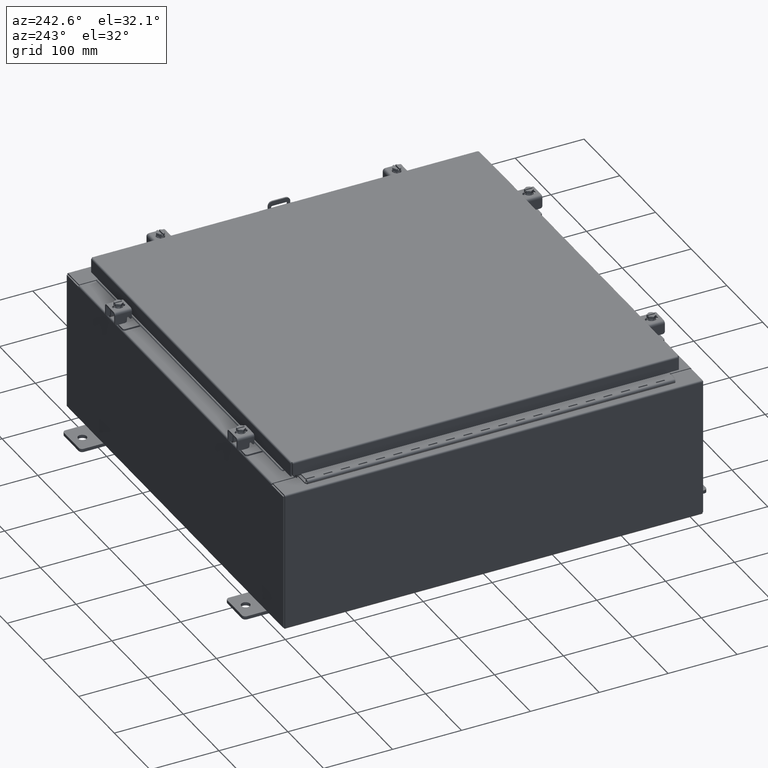
[diagram: clean part render]
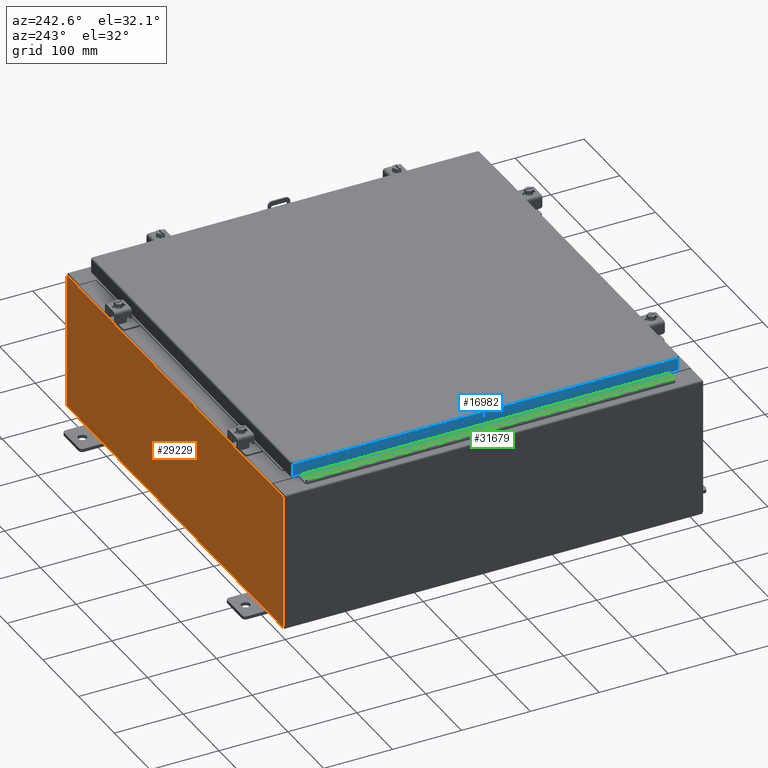
[diagram: same view with three faces highlighted in distinct colors, each labeled with its STEP entity id]
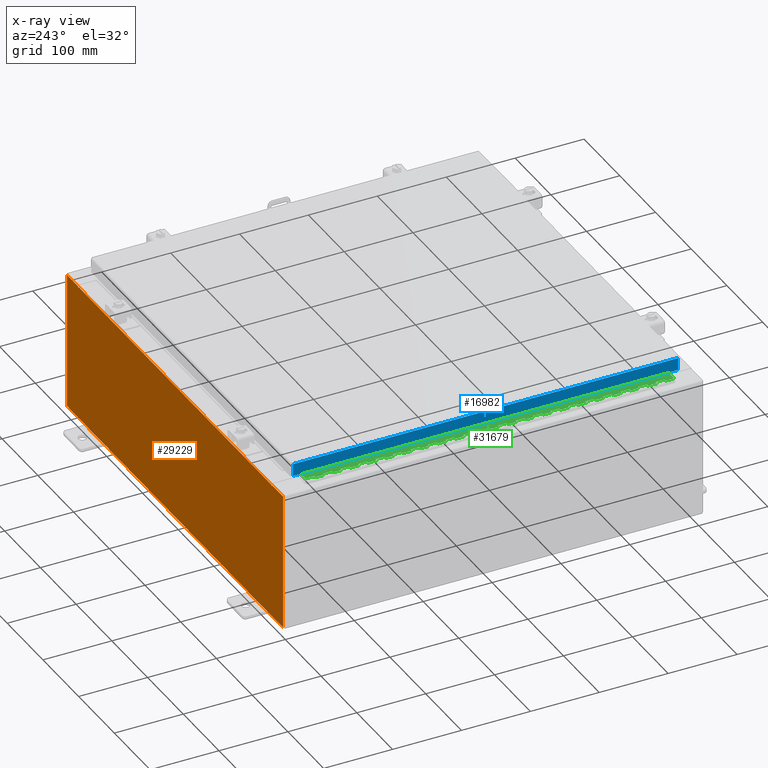
[diagram: x-ray of the same camera — body ghosted, the three highlighted faces saturated]
A machine part, auxiliary view with three faces highlighted in distinct colors.
The next image is the same camera in x-ray (body ghosted, the three faces saturated) — at least one of them is partly hidden behind the body in this view.
Their STEP definitions:

[orange] entity #29229 — the highlighted planar face has unit normal (0, -1, 0).
#252 = DIRECTION ( 'NONE',  ( 1.000000000000000000, 0.0000000000000000000, 0.0000000000000000000 ) ) ;
#728 = VERTEX_POINT ( 'NONE', #22244 ) ;
#1182 = CARTESIAN_POINT ( 'NONE',  ( 11.92530000000000000, 0.0000000000000000000, 3.925300000000000500 ) ) ;
#1405 = DIRECTION ( 'NONE',  ( -0.0000000000000000000, -0.0000000000000000000, 1.000000000000000000 ) ) ;
#1430 = AXIS2_PLACEMENT_3D ( 'NONE', #24963, #10052, #27511 ) ;
#1687 = CARTESIAN_POINT ( 'NONE',  ( -11.92530000000000000, 0.0000000000000000000, 3.925300000000000500 ) ) ;
#2603 = VERTEX_POINT ( 'NONE', #27160 ) ;
#2690 = CIRCLE ( 'NONE', #28657, 0.01867499999999949400 ) ;
#2843 = VECTOR ( 'NONE', #8079, 39.37007874015748100 ) ;
#2895 = VECTOR ( 'NONE', #19045, 39.37007874015748100 ) ;
#2983 = VECTOR ( 'NONE', #1405, 39.37007874015748100 ) ;
#4404 = ORIENTED_EDGE ( 'NONE', *, *, #22964, .F. ) ;
#4713 = CARTESIAN_POINT ( 'NONE',  ( 0.0000000000000000000, 0.0000000000000000000, 0.0000000000000000000 ) ) ;
#5823 = LINE ( 'NONE', #21666, #31761 ) ;
#5837 = VERTEX_POINT ( 'NONE', #17477 ) ;
#6293 = CARTESIAN_POINT ( 'NONE',  ( 10.67454999999983300, 0.0000000000000000000, -4.633214197254590000E-013 ) ) ;
#6903 = VERTEX_POINT ( 'NONE', #28217 ) ;
#7323 = VECTOR ( 'NONE', #22792, 39.37007874015748100 ) ;
#7633 = CARTESIAN_POINT ( 'NONE',  ( -10.63720000000000400, 0.0000000000000000000, 3.912300000000000100 ) ) ;
#8079 = DIRECTION ( 'NONE',  ( 1.000000000000000000, 0.0000000000000000000, 0.0000000000000000000 ) ) ;
#8124 = LINE ( 'NONE', #30531, #7323 ) ;
#8758 = VECTOR ( 'NONE', #31371, 39.37007874015748100 ) ;
#9279 = CARTESIAN_POINT ( 'NONE',  ( 10.67455000000000200, 0.0000000000000000000, 3.925300000000000500 ) ) ;
#9691 = CARTESIAN_POINT ( 'NONE',  ( -10.65587500000000200, 0.0000000000000000000, 3.874949999999999200 ) ) ;
#9882 = VERTEX_POINT ( 'NONE', #22557 ) ;
#10052 = DIRECTION ( 'NONE',  ( -0.0000000000000000000, 1.000000000000000000, -0.0000000000000000000 ) ) ;
#10424 = EDGE_CURVE ( 'NONE', #9882, #5837, #29441, .T. ) ;
#10467 = FACE_OUTER_BOUND ( 'NONE', #12451, .T. ) ;
#10600 = ORIENTED_EDGE ( 'NONE', *, *, #11396, .T. ) ;
#10906 = DIRECTION ( 'NONE',  ( 0.0000000000000000000, 0.0000000000000000000, -1.000000000000000000 ) ) ;
#11352 = EDGE_CURVE ( 'NONE', #22057, #25306, #19155, .T. ) ;
#11396 = EDGE_CURVE ( 'NONE', #26170, #25306, #24973, .T. ) ;
#11515 = EDGE_CURVE ( 'NONE', #27702, #2603, #15242, .T. ) ;
#11721 = VECTOR ( 'NONE', #252, 39.37007874015748100 ) ;
#12140 = VERTEX_POINT ( 'NONE', #20241 ) ;
#12179 = DIRECTION ( 'NONE',  ( 0.0000000000000000000, 0.0000000000000000000, -1.000000000000000000 ) ) ;
#12180 = DIRECTION ( 'NONE',  ( 0.0000000000000000000, -0.0000000000000000000, -1.000000000000000000 ) ) ;
#12451 = EDGE_LOOP ( 'NONE', ( #4404, #31087, #32417, #10600, #18082, #26474, #21574, #25636, #24474, #23145, #25661, #21693 ) ) ;
#13143 = CARTESIAN_POINT ( 'NONE',  ( 10.63720000000000400, 0.0000000000000000000, 3.912300000000000100 ) ) ;
#14166 = CARTESIAN_POINT ( 'NONE',  ( 10.63720000000000400, 0.0000000000000000000, 3.874949999999999200 ) ) ;
#14274 = DIRECTION ( 'NONE',  ( -1.000000000000000000, -0.0000000000000000000, -0.0000000000000000000 ) ) ;
#14549 = CARTESIAN_POINT ( 'NONE',  ( -10.63720000000000400, 0.0000000000000000000, 3.912300000000000100 ) ) ;
#15242 = LINE ( 'NONE', #20521, #2843 ) ;
#16398 = CARTESIAN_POINT ( 'NONE',  ( 10.67455000000000200, 0.0000000000000000000, 3.874949999999999200 ) ) ;
#17477 = CARTESIAN_POINT ( 'NONE',  ( -10.67455000000000200, 0.0000000000000000000, 3.925300000000000500 ) ) ;
#17982 = EDGE_CURVE ( 'NONE', #26170, #6903, #8124, .T. ) ;
#18082 = ORIENTED_EDGE ( 'NONE', *, *, #11352, .F. ) ;
#18514 = LINE ( 'NONE', #28719, #2983 ) ;
#18635 = VECTOR ( 'NONE', #23167, 39.37007874015748100 ) ;
#19045 = DIRECTION ( 'NONE',  ( 1.000000000000000000, 0.0000000000000000000, 0.0000000000000000000 ) ) ;
#19155 = LINE ( 'NONE', #24838, #31843 ) ;
#19710 = CIRCLE ( 'NONE', #1430, 0.01867499999999949400 ) ;
#19973 = EDGE_CURVE ( 'NONE', #28710, #22057, #19710, .T. ) ;
#20241 = CARTESIAN_POINT ( 'NONE',  ( 11.92530000000000000, 0.0000000000000000000, -3.925299999999999600 ) ) ;
#20264 = EDGE_CURVE ( 'NONE', #2603, #12140, #24321, .T. ) ;
#20314 = EDGE_CURVE ( 'NONE', #22588, #9882, #18514, .T. ) ;
#20327 = EDGE_CURVE ( 'NONE', #27702, #28710, #28689, .T. ) ;
#20521 = CARTESIAN_POINT ( 'NONE',  ( -11.92530000000000000, 0.0000000000000000000, 3.925300000000000500 ) ) ;
#21574 = ORIENTED_EDGE ( 'NONE', *, *, #20327, .F. ) ;
#21666 = CARTESIAN_POINT ( 'NONE',  ( -11.92530000000000000, 0.0000000000000000000, -3.925299999999999600 ) ) ;
#21693 = ORIENTED_EDGE ( 'NONE', *, *, #10424, .T. ) ;
#22057 = VERTEX_POINT ( 'NONE', #14166 ) ;
#22071 = EDGE_CURVE ( 'NONE', #12140, #22588, #5823, .T. ) ;
#22244 = CARTESIAN_POINT ( 'NONE',  ( -10.67455000000000200, 0.0000000000000000000, 3.874949999999999200 ) ) ;
#22557 = CARTESIAN_POINT ( 'NONE',  ( -11.92530000000000000, 0.0000000000000000000, 3.925300000000000500 ) ) ;
#22588 = VERTEX_POINT ( 'NONE', #30882 ) ;
#22628 = AXIS2_PLACEMENT_3D ( 'NONE', #4713, #27157, #12180 ) ;
#22792 = DIRECTION ( 'NONE',  ( 0.0000000000000000000, 0.0000000000000000000, -1.000000000000000000 ) ) ;
#22964 = EDGE_CURVE ( 'NONE', #728, #5837, #32133, .T. ) ;
#23145 = ORIENTED_EDGE ( 'NONE', *, *, #22071, .T. ) ;
#23167 = DIRECTION ( 'NONE',  ( 0.0000000000000000000, 0.0000000000000000000, 1.000000000000000000 ) ) ;
#23287 = EDGE_CURVE ( 'NONE', #6903, #728, #2690, .T. ) ;
#23509 = VECTOR ( 'NONE', #10906, 39.37007874015748100 ) ;
#24321 = LINE ( 'NONE', #1182, #23509 ) ;
#24474 = ORIENTED_EDGE ( 'NONE', *, *, #20264, .T. ) ;
#24603 = PLANE ( 'NONE',  #22628 ) ;
#24838 = CARTESIAN_POINT ( 'NONE',  ( 10.63720000000000400, 0.0000000000000000000, 0.0000000000000000000 ) ) ;
#24953 = DIRECTION ( 'NONE',  ( 0.0000000000000000000, 0.0000000000000000000, 1.000000000000000000 ) ) ;
#24963 = CARTESIAN_POINT ( 'NONE',  ( 10.65587500000000200, 0.0000000000000000000, 3.874949999999999200 ) ) ;
#24973 = LINE ( 'NONE', #7633, #11721 ) ;
#25306 = VERTEX_POINT ( 'NONE', #13143 ) ;
#25627 = CARTESIAN_POINT ( 'NONE',  ( -10.67455000000000200, 0.0000000000000000000, 0.0000000000000000000 ) ) ;
#25636 = ORIENTED_EDGE ( 'NONE', *, *, #11515, .T. ) ;
#25661 = ORIENTED_EDGE ( 'NONE', *, *, #20314, .T. ) ;
#26170 = VERTEX_POINT ( 'NONE', #14549 ) ;
#26474 = ORIENTED_EDGE ( 'NONE', *, *, #19973, .F. ) ;
#27153 = DIRECTION ( 'NONE',  ( -0.0000000000000000000, 1.000000000000000000, -0.0000000000000000000 ) ) ;
#27157 = DIRECTION ( 'NONE',  ( 0.0000000000000000000, -1.000000000000000000, 0.0000000000000000000 ) ) ;
#27160 = CARTESIAN_POINT ( 'NONE',  ( 11.92530000000000000, 0.0000000000000000000, 3.925300000000000500 ) ) ;
#27511 = DIRECTION ( 'NONE',  ( 0.0000000000000000000, 0.0000000000000000000, -1.000000000000000000 ) ) ;
#27702 = VERTEX_POINT ( 'NONE', #9279 ) ;
#28217 = CARTESIAN_POINT ( 'NONE',  ( -10.63720000000000400, 0.0000000000000000000, 3.874949999999999200 ) ) ;
#28657 = AXIS2_PLACEMENT_3D ( 'NONE', #9691, #27153, #12179 ) ;
#28689 = LINE ( 'NONE', #6293, #8758 ) ;
#28710 = VERTEX_POINT ( 'NONE', #16398 ) ;
#28719 = CARTESIAN_POINT ( 'NONE',  ( -11.92530000000000000, 0.0000000000000000000, 3.925300000000000500 ) ) ;
#29229 = ADVANCED_FACE ( 'NONE', ( #10467 ), #24603, .F. ) ;
#29441 = LINE ( 'NONE', #1687, #2895 ) ;
#30531 = CARTESIAN_POINT ( 'NONE',  ( -10.63720000000000400, 0.0000000000000000000, 0.0000000000000000000 ) ) ;
#30882 = CARTESIAN_POINT ( 'NONE',  ( -11.92530000000000000, 0.0000000000000000000, -3.925299999999999600 ) ) ;
#31087 = ORIENTED_EDGE ( 'NONE', *, *, #23287, .F. ) ;
#31371 = DIRECTION ( 'NONE',  ( -4.340572780400004900E-014, 0.0000000000000000000, -1.000000000000000000 ) ) ;
#31761 = VECTOR ( 'NONE', #14274, 39.37007874015748100 ) ;
#31843 = VECTOR ( 'NONE', #24953, 39.37007874015748100 ) ;
#32133 = LINE ( 'NONE', #25627, #18635 ) ;
#32417 = ORIENTED_EDGE ( 'NONE', *, *, #17982, .F. ) ;

[blue] entity #16982 — the highlighted planar face has unit normal (1, 0, -0).
#833 = FACE_OUTER_BOUND ( 'NONE', #18093, .T. ) ;
#1055 = VECTOR ( 'NONE', #30390, 39.37007874015748100 ) ;
#1622 = EDGE_CURVE ( 'NONE', #8389, #25981, #9082, .T. ) ;
#3161 = DIRECTION ( 'NONE',  ( 1.000000000000000000, 9.849821502304972600E-017, -6.068244883885633100E-015 ) ) ;
#3300 = VECTOR ( 'NONE', #28998, 39.37007874015748100 ) ;
#4036 = ORIENTED_EDGE ( 'NONE', *, *, #31176, .F. ) ;
#6392 = VERTEX_POINT ( 'NONE', #14109 ) ;
#6774 = VECTOR ( 'NONE', #27768, 39.37007874015748100 ) ;
#7584 = LINE ( 'NONE', #15307, #6774 ) ;
#7929 = AXIS2_PLACEMENT_3D ( 'NONE', #27970, #3161, #20541 ) ;
#8389 = VERTEX_POINT ( 'NONE', #32305 ) ;
#9082 = LINE ( 'NONE', #27122, #3300 ) ;
#12766 = CARTESIAN_POINT ( 'NONE',  ( -11.07799999999999900, 11.00515786437626400, 1.442415740654730900E-013 ) ) ;
#13352 = ORIENTED_EDGE ( 'NONE', *, *, #31171, .T. ) ;
#13747 = LINE ( 'NONE', #32208, #21157 ) ;
#14109 = CARTESIAN_POINT ( 'NONE',  ( -11.07800000000000500, -11.00515786437626700, -0.7949999999999996000 ) ) ;
#15307 = CARTESIAN_POINT ( 'NONE',  ( -11.07799999999999900, -11.00515786437627100, -0.07469999999999907300 ) ) ;
#16982 = ADVANCED_FACE ( 'NONE', ( #833 ), #18045, .F. ) ;
#17020 = DIRECTION ( 'NONE',  ( -9.849821502304897400E-017, 1.000000000000000000, 1.231227687788112100E-016 ) ) ;
#18045 = PLANE ( 'NONE',  #7929 ) ;
#18093 = EDGE_LOOP ( 'NONE', ( #25420, #13352, #21964, #4036 ) ) ;
#18733 = CARTESIAN_POINT ( 'NONE',  ( -11.07800000000000800, 11.00515786437626900, -0.7949999999999973800 ) ) ;
#20541 = DIRECTION ( 'NONE',  ( -6.068244883885633100E-015, 0.0000000000000000000, -1.000000000000000000 ) ) ;
#21157 = VECTOR ( 'NONE', #17020, 39.37007874015748100 ) ;
#21964 = ORIENTED_EDGE ( 'NONE', *, *, #31993, .F. ) ;
#23704 = VERTEX_POINT ( 'NONE', #18733 ) ;
#25420 = ORIENTED_EDGE ( 'NONE', *, *, #1622, .F. ) ;
#25981 = VERTEX_POINT ( 'NONE', #26116 ) ;
#26116 = CARTESIAN_POINT ( 'NONE',  ( -11.07799999999999900, -11.00515786437627200, -0.08769999999999481000 ) ) ;
#26707 = LINE ( 'NONE', #12766, #1055 ) ;
#27122 = CARTESIAN_POINT ( 'NONE',  ( -11.07799999999999900, -11.09400000000000100, -0.08770000000000026400 ) ) ;
#27768 = DIRECTION ( 'NONE',  ( -6.068244883885633100E-015, 6.982962677686265900E-015, -1.000000000000000000 ) ) ;
#27970 = CARTESIAN_POINT ( 'NONE',  ( -11.07799999999999900, -1.091163226054874600E-015, 6.774983024287373300E-014 ) ) ;
#28998 = DIRECTION ( 'NONE',  ( 9.849821502304913400E-017, -1.000000000000000000, -9.849821502304897400E-017 ) ) ;
#30390 = DIRECTION ( 'NONE',  ( -6.068244883885633100E-015, 6.982962677686265900E-015, -1.000000000000000000 ) ) ;
#31171 = EDGE_CURVE ( 'NONE', #8389, #23704, #26707, .T. ) ;
#31176 = EDGE_CURVE ( 'NONE', #25981, #6392, #7584, .T. ) ;
#31993 = EDGE_CURVE ( 'NONE', #6392, #23704, #13747, .T. ) ;
#32208 = CARTESIAN_POINT ( 'NONE',  ( -11.07800000000000500, -11.09400000000000100, -0.7949999999999996000 ) ) ;
#32305 = CARTESIAN_POINT ( 'NONE',  ( -11.07800000000000500, 11.00515786437626400, -0.08769999999999808500 ) ) ;

[green] entity #31679 — the highlighted planar face has unit normal (-0, -0, 1).
#115 = VECTOR ( 'NONE', #962, 39.37007874015748100 ) ;
#136 = EDGE_LOOP ( 'NONE', ( #11872, #6779, #20094, #1069, #2618, #10727, #4910, #24742, #32465, #13055, #8015, #21246, #27938, #9575, #23551, #11125, #24364, #32048, #6052, #13461, #1093, #1873, #22416, #3415, #4170, #17398, #31639, #5715, #19749, #27971, #22043, #3050, #16219, #11152, #17824, #6077, #13493, #26776, #14288, #8438, #21682, #15858, #23992, #12336, #25614, #6927, #13574, #20250, #15168, #30120, #24094, #11646, #24896, #6563, #13203, #20658, #1615, #28898, #29732, #17144, #30558, #18709, #25312, #32218, #6965, #27709, #15208, #29329, #16761, #4316, #24927, #12457, #19111, #19899, #881, #28113, #22196, #3958, #18750, #32246, #12863, #26936, #7822, #28527, #22593, #5886 ) ) ;
#195 = CARTESIAN_POINT ( 'NONE',  ( -0.6869999999999983900, 0.5504999999999984400, -17.99999999999999600 ) ) ;
#216 = CARTESIAN_POINT ( 'NONE',  ( -0.6869999999999973900, 0.5504999999999984400, -0.9999999999999992200 ) ) ;
#218 = LINE ( 'NONE', #26639, #5939 ) ;
#254 = LINE ( 'NONE', #22936, #20037 ) ;
#256 = CARTESIAN_POINT ( 'NONE',  ( -0.6869999999999983900, 0.5504999999999984400, -8.499999999999998200 ) ) ;
#334 = VECTOR ( 'NONE', #26680, 39.37007874015748100 ) ;
#367 = CARTESIAN_POINT ( 'NONE',  ( -0.6869999999999983900, 0.5504999999999984400, -18.49999999999999600 ) ) ;
#415 = VECTOR ( 'NONE', #22079, 39.37007874015748100 ) ;
#418 = CARTESIAN_POINT ( 'NONE',  ( -0.6870000000000028300, -0.6245000000000020500, 0.0000000000000000000 ) ) ;
#434 = DIRECTION ( 'NONE',  ( 3.389037039080710900E-015, 1.000000000000000000, 1.886192621741047800E-028 ) ) ;
#457 = EDGE_CURVE ( 'NONE', #23018, #11298, #2183, .T. ) ;
#481 = LINE ( 'NONE', #1908, #19480 ) ;
#567 = CARTESIAN_POINT ( 'NONE',  ( -0.6869999999999983900, 0.6754999999999977700, -21.00000000000000000 ) ) ;
#636 = VECTOR ( 'NONE', #4330, 39.37007874015748100 ) ;
#683 = EDGE_CURVE ( 'NONE', #31144, #5465, #18110, .T. ) ;
#836 = VECTOR ( 'NONE', #19085, 39.37007874015748100 ) ;
#838 = CARTESIAN_POINT ( 'NONE',  ( -0.6869999999999973900, 0.6754999999999977700, -8.999999999999998200 ) ) ;
#881 = ORIENTED_EDGE ( 'NONE', *, *, #29389, .F. ) ;
#962 = DIRECTION ( 'NONE',  ( -3.389037039080710900E-015, -1.000000000000000000, -1.886192621741047800E-028 ) ) ;
#1037 = VECTOR ( 'NONE', #7031, 39.37007874015748100 ) ;
#1047 = EDGE_CURVE ( 'NONE', #21350, #28630, #254, .T. ) ;
#1056 = EDGE_CURVE ( 'NONE', #7806, #19864, #19256, .T. ) ;
#1069 = ORIENTED_EDGE ( 'NONE', *, *, #16574, .F. ) ;
#1077 = LINE ( 'NONE', #4935, #20109 ) ;
#1093 = ORIENTED_EDGE ( 'NONE', *, *, #9969, .T. ) ;
#1193 = DIRECTION ( 'NONE',  ( -5.723678905444203800E-028, 1.886259682160230100E-028, 1.000000000000000000 ) ) ;
#1259 = VECTOR ( 'NONE', #12691, 39.37007874015748100 ) ;
#1285 = EDGE_CURVE ( 'NONE', #12143, #15107, #29482, .T. ) ;
#1299 = VECTOR ( 'NONE', #26769, 39.37007874015748100 ) ;
#1301 = VERTEX_POINT ( 'NONE', #21568 ) ;
#1371 = VECTOR ( 'NONE', #3198, 39.37007874015748100 ) ;
#1615 = ORIENTED_EDGE ( 'NONE', *, *, #14573, .T. ) ;
#1637 = DIRECTION ( 'NONE',  ( -3.389037039080710900E-015, -1.000000000000000000, -1.886192621741047800E-028 ) ) ;
#1661 = CARTESIAN_POINT ( 'NONE',  ( -0.6869999999999973900, 0.5504999999999984400, -5.499999999999999100 ) ) ;
#1680 = VERTEX_POINT ( 'NONE', #30401 ) ;
#1684 = VECTOR ( 'NONE', #22719, 39.37007874015748100 ) ;
#1690 = DIRECTION ( 'NONE',  ( 5.723678905444203800E-028, -1.886259682160230100E-028, -1.000000000000000000 ) ) ;
#1706 = CARTESIAN_POINT ( 'NONE',  ( -0.6869999999999973900, 0.8004999999999993200, -6.999999999999998200 ) ) ;
#1778 = CARTESIAN_POINT ( 'NONE',  ( -0.6869999999999973900, 0.6754999999999999900, -9.499999999999998200 ) ) ;
#1852 = LINE ( 'NONE', #418, #7604 ) ;
#1873 = ORIENTED_EDGE ( 'NONE', *, *, #22680, .F. ) ;
#1903 = CARTESIAN_POINT ( 'NONE',  ( -0.6869999999999983900, 0.6754999999999977700, -21.00000000000000000 ) ) ;
#1908 = CARTESIAN_POINT ( 'NONE',  ( -0.6869999999999973900, 0.5504999999999984400, -19.49999999999999600 ) ) ;
#1942 = VECTOR ( 'NONE', #5388, 39.37007874015748100 ) ;
#2014 = VERTEX_POINT ( 'NONE', #26025 ) ;
#2020 = VERTEX_POINT ( 'NONE', #19703 ) ;
#2023 = VECTOR ( 'NONE', #5977, 39.37007874015748100 ) ;
#2083 = EDGE_CURVE ( 'NONE', #7491, #1680, #2118, .T. ) ;
#2114 = DIRECTION ( 'NONE',  ( -5.723678905444203800E-028, 1.886259682160230100E-028, 1.000000000000000000 ) ) ;
#2118 = LINE ( 'NONE', #8809, #16071 ) ;
#2124 = CARTESIAN_POINT ( 'NONE',  ( -0.6869999999999983900, 0.5504999999999984400, -2.999999999999998700 ) ) ;
#2125 = VECTOR ( 'NONE', #1690, 39.37007874015748100 ) ;
#2183 = LINE ( 'NONE', #19028, #27877 ) ;
#2242 = VERTEX_POINT ( 'NONE', #18276 ) ;
#2282 = EDGE_CURVE ( 'NONE', #2242, #17621, #30303, .T. ) ;
#2330 = EDGE_CURVE ( 'NONE', #6039, #5081, #16113, .T. ) ;
#2410 = VECTOR ( 'NONE', #15758, 39.37007874015748100 ) ;
#2443 = VECTOR ( 'NONE', #23815, 39.37007874015748100 ) ;
#2463 = DIRECTION ( 'NONE',  ( -3.389037039080710900E-015, -1.000000000000000000, -1.886192621741047800E-028 ) ) ;
#2521 = EDGE_CURVE ( 'NONE', #28490, #31144, #12183, .T. ) ;
#2618 = ORIENTED_EDGE ( 'NONE', *, *, #18335, .T. ) ;
#2702 = EDGE_CURVE ( 'NONE', #31666, #30347, #23070, .T. ) ;
#2713 = DIRECTION ( 'NONE',  ( 5.723678905444203800E-028, -1.886259682160230100E-028, -1.000000000000000000 ) ) ;
#2730 = LINE ( 'NONE', #13783, #14337 ) ;
#2733 = VERTEX_POINT ( 'NONE', #8770 ) ;
#2784 = LINE ( 'NONE', #23424, #20272 ) ;
#2869 = DIRECTION ( 'NONE',  ( 3.389037039080710900E-015, 1.000000000000000000, 1.886192621741047800E-028 ) ) ;
#3026 = DIRECTION ( 'NONE',  ( -5.723678905444203800E-028, 1.886259682160230100E-028, 1.000000000000000000 ) ) ;
#3050 = ORIENTED_EDGE ( 'NONE', *, *, #21309, .F. ) ;
#3075 = CARTESIAN_POINT ( 'NONE',  ( -0.6869999999999973900, 0.8004999999999993200, -14.99999999999999600 ) ) ;
#3080 = VERTEX_POINT ( 'NONE', #16098 ) ;
#3108 = CARTESIAN_POINT ( 'NONE',  ( -0.6869999999999973900, 0.8004999999999971000, -3.499999999999998200 ) ) ;
#3198 = DIRECTION ( 'NONE',  ( 3.389037039080710900E-015, 1.000000000000000000, 1.886192621741047800E-028 ) ) ;
#3221 = VECTOR ( 'NONE', #31690, 39.37007874015748100 ) ;
#3224 = VERTEX_POINT ( 'NONE', #30278 ) ;
#3232 = VERTEX_POINT ( 'NONE', #29139 ) ;
#3313 = EDGE_CURVE ( 'NONE', #13042, #2242, #27826, .T. ) ;
#3369 = CARTESIAN_POINT ( 'NONE',  ( -0.6869999999999983900, 0.5504999999999984400, -13.49999999999999800 ) ) ;
#3415 = ORIENTED_EDGE ( 'NONE', *, *, #19034, .F. ) ;
#3491 = CARTESIAN_POINT ( 'NONE',  ( -0.6869999999999973900, 0.5504999999999984400, -15.49999999999999800 ) ) ;
#3567 = LINE ( 'NONE', #6584, #10145 ) ;
#3684 = CARTESIAN_POINT ( 'NONE',  ( -0.6869999999999973900, 0.5504999999999984400, -19.49999999999999600 ) ) ;
#3782 = CARTESIAN_POINT ( 'NONE',  ( -0.6869999999999995000, 0.07549999999999869300, 2.185478394931410600E-015 ) ) ;
#3804 = DIRECTION ( 'NONE',  ( 5.723678905444203800E-028, -1.886259682160230100E-028, -1.000000000000000000 ) ) ;
#3872 = LINE ( 'NONE', #27821, #17906 ) ;
#3888 = CARTESIAN_POINT ( 'NONE',  ( -0.6869999999999973900, 0.6754999999999999900, -4.499999999999999100 ) ) ;
#3911 = CARTESIAN_POINT ( 'NONE',  ( -0.6869999999999983900, 0.5504999999999984400, -12.49999999999999600 ) ) ;
#3958 = ORIENTED_EDGE ( 'NONE', *, *, #11855, .F. ) ;
#4075 = LINE ( 'NONE', #17778, #23078 ) ;
#4155 = CARTESIAN_POINT ( 'NONE',  ( -0.6869999999999983900, 0.6754999999999977700, -5.999999999999999100 ) ) ;
#4170 = ORIENTED_EDGE ( 'NONE', *, *, #23857, .T. ) ;
#4316 = ORIENTED_EDGE ( 'NONE', *, *, #22450, .F. ) ;
#4330 = DIRECTION ( 'NONE',  ( 5.723678905444203800E-028, -1.886259682160230100E-028, -1.000000000000000000 ) ) ;
#4423 = CARTESIAN_POINT ( 'NONE',  ( -0.6869999999999983900, 0.6754999999999977700, -15.50000000000000000 ) ) ;
#4499 = DIRECTION ( 'NONE',  ( -3.389037039080710900E-015, -1.000000000000000000, -1.886192621741047800E-028 ) ) ;
#4579 = LINE ( 'NONE', #11912, #16232 ) ;
#4629 = CARTESIAN_POINT ( 'NONE',  ( -0.6869999999999983900, 0.6754999999999977700, -11.50000000000000000 ) ) ;
#4656 = CARTESIAN_POINT ( 'NONE',  ( -0.6869999999999973900, 0.6754999999999977700, -8.499999999999996400 ) ) ;
#4749 = VERTEX_POINT ( 'NONE', #22970 ) ;
#4777 = VERTEX_POINT ( 'NONE', #8521 ) ;
#4844 = CARTESIAN_POINT ( 'NONE',  ( -0.6869999999999973900, 0.8004999999999993200, -7.999999999999999100 ) ) ;
#4910 = ORIENTED_EDGE ( 'NONE', *, *, #16771, .F. ) ;
#4915 = VECTOR ( 'NONE', #2463, 39.37007874015748100 ) ;
#4919 = VECTOR ( 'NONE', #2869, 39.37007874015748100 ) ;
#4927 = DIRECTION ( 'NONE',  ( -5.723678905444203800E-028, 1.886259682160230100E-028, 1.000000000000000000 ) ) ;
#4935 = CARTESIAN_POINT ( 'NONE',  ( -0.6870000000000017200, -0.6245000000000020500, -20.99999999999999600 ) ) ;
#4971 = DIRECTION ( 'NONE',  ( -5.723678905444203800E-028, 1.886259682160230100E-028, 1.000000000000000000 ) ) ;
#4978 = VECTOR ( 'NONE', #17072, 39.37007874015748100 ) ;
#4984 = LINE ( 'NONE', #15089, #10812 ) ;
#4992 = DIRECTION ( 'NONE',  ( 5.723678905444203800E-028, -1.886259682160230100E-028, -1.000000000000000000 ) ) ;
#5065 = LINE ( 'NONE', #16058, #16744 ) ;
#5081 = VERTEX_POINT ( 'NONE', #27804 ) ;
#5098 = LINE ( 'NONE', #9019, #24133 ) ;
#5230 = CARTESIAN_POINT ( 'NONE',  ( -0.6869999999999973900, 0.8004999999999993200, -5.499999999999999100 ) ) ;
#5313 = CARTESIAN_POINT ( 'NONE',  ( -0.6869999999999983900, 0.5504999999999984400, -7.499999999999998200 ) ) ;
#5350 = DIRECTION ( 'NONE',  ( 3.389037039080710900E-015, 1.000000000000000000, 1.886192621741047800E-028 ) ) ;
#5375 = EDGE_CURVE ( 'NONE', #17175, #12459, #21082, .T. ) ;
#5388 = DIRECTION ( 'NONE',  ( 5.723678905444203800E-028, -1.886259682160230100E-028, -1.000000000000000000 ) ) ;
#5421 = DIRECTION ( 'NONE',  ( 5.723678905444203800E-028, -1.886259682160230100E-028, -1.000000000000000000 ) ) ;
#5461 = DIRECTION ( 'NONE',  ( 3.389037039080710900E-015, 1.000000000000000000, 1.886192621741047800E-028 ) ) ;
#5465 = VERTEX_POINT ( 'NONE', #24465 ) ;
#5500 = DIRECTION ( 'NONE',  ( -5.723678905444203800E-028, 1.886259682160230100E-028, 1.000000000000000000 ) ) ;
#5548 = VERTEX_POINT ( 'NONE', #5678 ) ;
#5678 = CARTESIAN_POINT ( 'NONE',  ( -0.6869999999999973900, 0.6754999999999977700, -14.00000000000000000 ) ) ;
#5715 = ORIENTED_EDGE ( 'NONE', *, *, #23272, .F. ) ;
#5752 = LINE ( 'NONE', #28748, #11548 ) ;
#5881 = CARTESIAN_POINT ( 'NONE',  ( -0.6869999999999983900, 0.6754999999999977700, -21.00000000000000000 ) ) ;
#5886 = ORIENTED_EDGE ( 'NONE', *, *, #15150, .F. ) ;
#5939 = VECTOR ( 'NONE', #29225, 39.37007874015748100 ) ;
#5977 = DIRECTION ( 'NONE',  ( 5.723678905444203800E-028, -1.886259682160230100E-028, -1.000000000000000000 ) ) ;
#6037 = CARTESIAN_POINT ( 'NONE',  ( -0.6869999999999983900, 0.5504999999999984400, -12.99999999999999600 ) ) ;
#6039 = VERTEX_POINT ( 'NONE', #29114 ) ;
#6052 = ORIENTED_EDGE ( 'NONE', *, *, #22858, .F. ) ;
#6064 = VECTOR ( 'NONE', #14239, 39.37007874015748100 ) ;
#6077 = ORIENTED_EDGE ( 'NONE', *, *, #9694, .F. ) ;
#6156 = CARTESIAN_POINT ( 'NONE',  ( -0.6869999999999973900, 0.6754999999999977700, -14.99999999999999800 ) ) ;
#6271 = VERTEX_POINT ( 'NONE', #23635 ) ;
#6307 = LINE ( 'NONE', #29656, #25439 ) ;
#6405 = CARTESIAN_POINT ( 'NONE',  ( -0.6869999999999983900, 0.5504999999999984400, -17.49999999999999600 ) ) ;
#6563 = ORIENTED_EDGE ( 'NONE', *, *, #14518, .F. ) ;
#6584 = CARTESIAN_POINT ( 'NONE',  ( -0.6869999999999973900, 0.8004999999999971000, -1.999999999999999300 ) ) ;
#6630 = CARTESIAN_POINT ( 'NONE',  ( -0.6869999999999973900, 0.6754999999999977700, -17.99999999999999600 ) ) ;
#6752 = EDGE_CURVE ( 'NONE', #11317, #7656, #9740, .T. ) ;
#6759 = CARTESIAN_POINT ( 'NONE',  ( -0.6869999999999983900, 0.6754999999999977700, -1.499999999999998700 ) ) ;
#6779 = ORIENTED_EDGE ( 'NONE', *, *, #30400, .T. ) ;
#6786 = VERTEX_POINT ( 'NONE', #195 ) ;
#6927 = ORIENTED_EDGE ( 'NONE', *, *, #19742, .F. ) ;
#6965 = ORIENTED_EDGE ( 'NONE', *, *, #22218, .T. ) ;
#7031 = DIRECTION ( 'NONE',  ( 3.389037039080710900E-015, 1.000000000000000000, 1.886192621741047800E-028 ) ) ;
#7072 = CARTESIAN_POINT ( 'NONE',  ( -0.6869999999999983900, 0.5504999999999984400, -16.49999999999999600 ) ) ;
#7073 = EDGE_CURVE ( 'NONE', #17685, #27770, #10899, .T. ) ;
#7082 = VERTEX_POINT ( 'NONE', #15110 ) ;
#7096 = VERTEX_POINT ( 'NONE', #28766 ) ;
#7114 = EDGE_CURVE ( 'NONE', #7216, #12590, #2784, .T. ) ;
#7195 = CARTESIAN_POINT ( 'NONE',  ( -0.6869999999999973900, 0.5504999999999984400, -1.499999999999998700 ) ) ;
#7216 = VERTEX_POINT ( 'NONE', #3888 ) ;
#7255 = VECTOR ( 'NONE', #12415, 39.37007874015748100 ) ;
#7303 = DIRECTION ( 'NONE',  ( 3.389037039080710900E-015, 1.000000000000000000, 1.886192621741047800E-028 ) ) ;
#7454 = CARTESIAN_POINT ( 'NONE',  ( -0.6869999999999983900, 0.6754999999999977700, -21.00000000000000000 ) ) ;
#7491 = VERTEX_POINT ( 'NONE', #24736 ) ;
#7525 = DIRECTION ( 'NONE',  ( 3.369016658928385200E-015, 1.000000000000000000, 1.886239619022383900E-028 ) ) ;
#7557 = CARTESIAN_POINT ( 'NONE',  ( -0.6869999999999973900, 0.8004999999999993200, -20.00000000000000000 ) ) ;
#7567 = CARTESIAN_POINT ( 'NONE',  ( -0.6869999999999973900, 0.5504999999999984400, -6.499999999999999100 ) ) ;
#7569 = LINE ( 'NONE', #11944, #1037 ) ;
#7604 = VECTOR ( 'NONE', #10333, 39.37007874015748100 ) ;
#7642 = LINE ( 'NONE', #11932, #10372 ) ;
#7651 = VERTEX_POINT ( 'NONE', #4656 ) ;
#7656 = VERTEX_POINT ( 'NONE', #3782 ) ;
#7680 = DIRECTION ( 'NONE',  ( -5.723678905444203800E-028, 1.886259682160230100E-028, 1.000000000000000000 ) ) ;
#7699 = DIRECTION ( 'NONE',  ( -5.723678905444203800E-028, 1.886259682160230100E-028, 1.000000000000000000 ) ) ;
#7711 = LINE ( 'NONE', #13894, #20207 ) ;
#7751 = LINE ( 'NONE', #31800, #20992 ) ;
#7803 = LINE ( 'NONE', #20134, #1259 ) ;
#7806 = VERTEX_POINT ( 'NONE', #17612 ) ;
#7815 = VERTEX_POINT ( 'NONE', #3369 ) ;
#7822 = ORIENTED_EDGE ( 'NONE', *, *, #1285, .F. ) ;
#7823 = CARTESIAN_POINT ( 'NONE',  ( -0.6869999999999973900, 0.5504999999999984400, -1.999999999999998400 ) ) ;
#7880 = CARTESIAN_POINT ( 'NONE',  ( -0.6869999999999973900, 0.6754999999999977700, -12.99999999999999800 ) ) ;
#8015 = ORIENTED_EDGE ( 'NONE', *, *, #28453, .F. ) ;
#8018 = CARTESIAN_POINT ( 'NONE',  ( -0.6869999999999973900, 0.6754999999999999900, -6.999999999999998200 ) ) ;
#8034 = CARTESIAN_POINT ( 'NONE',  ( -0.6869999999999973900, 0.5504999999999984400, -20.00000000000000000 ) ) ;
#8066 = VECTOR ( 'NONE', #1637, 39.37007874015748100 ) ;
#8086 = CARTESIAN_POINT ( 'NONE',  ( -0.6869999999999962800, 0.8004999999999993200, -4.999999999999999100 ) ) ;
#8106 = DIRECTION ( 'NONE',  ( -5.723678905444203800E-028, 1.886259682160230100E-028, 1.000000000000000000 ) ) ;
#8150 = LINE ( 'NONE', #16573, #836 ) ;
#8199 = LINE ( 'NONE', #6405, #2443 ) ;
#8438 = ORIENTED_EDGE ( 'NONE', *, *, #18315, .F. ) ;
#8444 = EDGE_CURVE ( 'NONE', #11986, #9242, #8487, .T. ) ;
#8487 = LINE ( 'NONE', #17111, #415 ) ;
#8521 = CARTESIAN_POINT ( 'NONE',  ( -0.6869999999999973900, 0.6754999999999977700, -5.499999999999999100 ) ) ;
#8733 = LINE ( 'NONE', #25328, #27073 ) ;
#8770 = CARTESIAN_POINT ( 'NONE',  ( -0.6869999999999973900, 0.5504999999999984400, -5.999999999999999100 ) ) ;
#8809 = CARTESIAN_POINT ( 'NONE',  ( -0.6869999999999973900, 0.5504999999999984400, -14.49999999999999600 ) ) ;
#8813 = LINE ( 'NONE', #24782, #13864 ) ;
#8976 = EDGE_CURVE ( 'NONE', #11298, #11578, #7569, .T. ) ;
#9019 = CARTESIAN_POINT ( 'NONE',  ( -0.6869999999999973900, 0.8004999999999993200, -10.49999999999999800 ) ) ;
#9043 = LINE ( 'NONE', #25405, #22259 ) ;
#9121 = EDGE_CURVE ( 'NONE', #7216, #29822, #30335, .T. ) ;
#9154 = LINE ( 'NONE', #8086, #28303 ) ;
#9238 = EDGE_CURVE ( 'NONE', #2014, #17621, #8733, .T. ) ;
#9242 = VERTEX_POINT ( 'NONE', #12911 ) ;
#9244 = VECTOR ( 'NONE', #12077, 39.37007874015748100 ) ;
#9311 = CARTESIAN_POINT ( 'NONE',  ( -0.6869999999999983900, 0.5504999999999984400, -3.499999999999999100 ) ) ;
#9395 = VECTOR ( 'NONE', #3026, 39.37007874015748100 ) ;
#9575 = ORIENTED_EDGE ( 'NONE', *, *, #17784, .F. ) ;
#9613 = VECTOR ( 'NONE', #7303, 39.37007874015748100 ) ;
#9627 = DIRECTION ( 'NONE',  ( 1.000000000000000000, -3.369016658928386000E-015, -5.723678905444201100E-028 ) ) ;
#9651 = VECTOR ( 'NONE', #26992, 39.37007874015748100 ) ;
#9680 = LINE ( 'NONE', #5230, #22125 ) ;
#9694 = EDGE_CURVE ( 'NONE', #2014, #21350, #31112, .T. ) ;
#9740 = LINE ( 'NONE', #18282, #2410 ) ;
#9896 = DIRECTION ( 'NONE',  ( 5.723678905444203800E-028, -1.886259682160230100E-028, -1.000000000000000000 ) ) ;
#9961 = VECTOR ( 'NONE', #5421, 39.37007874015748100 ) ;
#9969 = EDGE_CURVE ( 'NONE', #17685, #12781, #31530, .T. ) ;
#9989 = CARTESIAN_POINT ( 'NONE',  ( -0.6869999999999983900, 0.6754999999999977700, -21.00000000000000000 ) ) ;
#10026 = VECTOR ( 'NONE', #4499, 39.37007874015748100 ) ;
#10074 = EDGE_CURVE ( 'NONE', #3080, #31292, #29864, .T. ) ;
#10092 = CARTESIAN_POINT ( 'NONE',  ( -0.6869999999999983900, 0.6754999999999977700, -21.00000000000000000 ) ) ;
#10113 = VECTOR ( 'NONE', #29005, 39.37007874015748100 ) ;
#10118 = DIRECTION ( 'NONE',  ( -5.723678905444203800E-028, 1.886259682160230100E-028, 1.000000000000000000 ) ) ;
#10145 = VECTOR ( 'NONE', #21535, 39.37007874015748100 ) ;
#10205 = CARTESIAN_POINT ( 'NONE',  ( -0.6869999999999983900, 0.5504999999999984400, -0.4999999999999996100 ) ) ;
#10333 = DIRECTION ( 'NONE',  ( 3.369016658928385200E-015, 1.000000000000000000, 1.886239619022383900E-028 ) ) ;
#10372 = VECTOR ( 'NONE', #2114, 39.37007874015748100 ) ;
#10445 = LINE ( 'NONE', #19472, #9651 ) ;
#10537 = CARTESIAN_POINT ( 'NONE',  ( -0.6869999999999983900, 0.5504999999999984400, -16.99999999999999600 ) ) ;
#10622 = EDGE_CURVE ( 'NONE', #7651, #19921, #18052, .T. ) ;
#10657 = VECTOR ( 'NONE', #28315, 39.37007874015748100 ) ;
#10727 = ORIENTED_EDGE ( 'NONE', *, *, #15807, .F. ) ;
#10803 = LINE ( 'NONE', #26412, #23215 ) ;
#10807 = LINE ( 'NONE', #11963, #10026 ) ;
#10810 = CARTESIAN_POINT ( 'NONE',  ( -0.6869999999999973900, 0.5504999999999984400, -10.49999999999999800 ) ) ;
#10812 = VECTOR ( 'NONE', #20222, 39.37007874015748100 ) ;
#10897 = LINE ( 'NONE', #1661, #10113 ) ;
#10899 = LINE ( 'NONE', #17851, #15189 ) ;
#11002 = LINE ( 'NONE', #26749, #23418 ) ;
#11125 = ORIENTED_EDGE ( 'NONE', *, *, #29661, .F. ) ;
#11152 = ORIENTED_EDGE ( 'NONE', *, *, #24111, .F. ) ;
#11174 = VERTEX_POINT ( 'NONE', #26964 ) ;
#11197 = CARTESIAN_POINT ( 'NONE',  ( -0.6869999999999973900, 0.6754999999999977700, -17.50000000000000000 ) ) ;
#11239 = VERTEX_POINT ( 'NONE', #4629 ) ;
#11246 = VERTEX_POINT ( 'NONE', #7195 ) ;
#11266 = CARTESIAN_POINT ( 'NONE',  ( -0.6869999999999973900, 0.8004999999999971000, -13.50000000000000000 ) ) ;
#11298 = VERTEX_POINT ( 'NONE', #12316 ) ;
#11317 = VERTEX_POINT ( 'NONE', #12208 ) ;
#11381 = CARTESIAN_POINT ( 'NONE',  ( -0.6869999999999983900, 0.5504999999999984400, -8.999999999999998200 ) ) ;
#11387 = VECTOR ( 'NONE', #23315, 39.37007874015748100 ) ;
#11440 = CARTESIAN_POINT ( 'NONE',  ( -0.6869999999999973900, 0.8004999999999993200, -15.49999999999999800 ) ) ;
#11477 = EDGE_CURVE ( 'NONE', #12546, #1301, #16008, .T. ) ;
#11548 = VECTOR ( 'NONE', #13524, 39.37007874015748100 ) ;
#11576 = CARTESIAN_POINT ( 'NONE',  ( -0.6869999999999973900, 0.6754999999999977700, -3.999999999999998700 ) ) ;
#11578 = VERTEX_POINT ( 'NONE', #22293 ) ;
#11590 = LINE ( 'NONE', #21800, #17475 ) ;
#11646 = ORIENTED_EDGE ( 'NONE', *, *, #23241, .F. ) ;
#11836 = EDGE_CURVE ( 'NONE', #7806, #23018, #5098, .T. ) ;
#11855 = EDGE_CURVE ( 'NONE', #17947, #14769, #3567, .T. ) ;
#11872 = ORIENTED_EDGE ( 'NONE', *, *, #6752, .F. ) ;
#11912 = CARTESIAN_POINT ( 'NONE',  ( -0.6869999999999973900, 0.8004999999999971000, -1.499999999999998700 ) ) ;
#11932 = CARTESIAN_POINT ( 'NONE',  ( -0.6869999999999983900, 0.6754999999999977700, -21.00000000000000000 ) ) ;
#11944 = CARTESIAN_POINT ( 'NONE',  ( -0.6869999999999973900, 0.8004999999999971000, -10.99999999999999800 ) ) ;
#11963 = CARTESIAN_POINT ( 'NONE',  ( -0.6869999999999962800, 0.8004999999999971000, -8.499999999999998200 ) ) ;
#11986 = VERTEX_POINT ( 'NONE', #21949 ) ;
#12072 = CARTESIAN_POINT ( 'NONE',  ( -0.6869999999999973900, 0.5504999999999984400, -20.50000000000000400 ) ) ;
#12077 = DIRECTION ( 'NONE',  ( -3.389037039080710900E-015, -1.000000000000000000, -1.886192621741047800E-028 ) ) ;
#12078 = DIRECTION ( 'NONE',  ( -5.723678905444203800E-028, 1.886259682160230100E-028, 1.000000000000000000 ) ) ;
#12083 = DIRECTION ( 'NONE',  ( -3.389037039080710900E-015, -1.000000000000000000, -1.886192621741047800E-028 ) ) ;
#12143 = VERTEX_POINT ( 'NONE', #10205 ) ;
#12178 = VERTEX_POINT ( 'NONE', #8018 ) ;
#12183 = LINE ( 'NONE', #26099, #25459 ) ;
#12195 = DIRECTION ( 'NONE',  ( 5.723678905444203800E-028, -1.886259682160230100E-028, -1.000000000000000000 ) ) ;
#12208 = CARTESIAN_POINT ( 'NONE',  ( -0.6869999999999995000, 0.07549999999999869300, -20.99999999999999600 ) ) ;
#12215 = VERTEX_POINT ( 'NONE', #15651 ) ;
#12298 = EDGE_CURVE ( 'NONE', #15107, #1301, #5065, .T. ) ;
#12316 = CARTESIAN_POINT ( 'NONE',  ( -0.6869999999999973900, 0.5504999999999984400, -10.99999999999999800 ) ) ;
#12318 = LINE ( 'NONE', #7454, #31655 ) ;
#12336 = ORIENTED_EDGE ( 'NONE', *, *, #11836, .F. ) ;
#12365 = VECTOR ( 'NONE', #30999, 39.37007874015748100 ) ;
#12415 = DIRECTION ( 'NONE',  ( -5.723678905444203800E-028, 1.886259682160230100E-028, 1.000000000000000000 ) ) ;
#12457 = ORIENTED_EDGE ( 'NONE', *, *, #2330, .F. ) ;
#12459 = VERTEX_POINT ( 'NONE', #16389 ) ;
#12546 = VERTEX_POINT ( 'NONE', #6759 ) ;
#12589 = VECTOR ( 'NONE', #29219, 39.37007874015748100 ) ;
#12590 = VERTEX_POINT ( 'NONE', #19336 ) ;
#12605 = CARTESIAN_POINT ( 'NONE',  ( -0.6869999999999973900, 0.6754999999999977700, -18.50000000000000000 ) ) ;
#12617 = CARTESIAN_POINT ( 'NONE',  ( -0.6869999999999973900, 0.6754999999999999900, -19.00000000000000000 ) ) ;
#12653 = DIRECTION ( 'NONE',  ( 3.389037039080710900E-015, 1.000000000000000000, 1.886192621741047800E-028 ) ) ;
#12691 = DIRECTION ( 'NONE',  ( 5.723678905444203800E-028, -1.886259682160230100E-028, -1.000000000000000000 ) ) ;
#12781 = VERTEX_POINT ( 'NONE', #17468 ) ;
#12863 = ORIENTED_EDGE ( 'NONE', *, *, #11477, .T. ) ;
#12911 = CARTESIAN_POINT ( 'NONE',  ( -0.6869999999999973900, 0.6754999999999999900, 0.0000000000000000000 ) ) ;
#12986 = LINE ( 'NONE', #9311, #636 ) ;
#13042 = VERTEX_POINT ( 'NONE', #24822 ) ;
#13055 = ORIENTED_EDGE ( 'NONE', *, *, #22027, .F. ) ;
#13203 = ORIENTED_EDGE ( 'NONE', *, *, #24121, .F. ) ;
#13264 = EDGE_CURVE ( 'NONE', #6039, #12215, #19031, .T. ) ;
#13268 = CARTESIAN_POINT ( 'NONE',  ( -0.6869999999999973900, 0.6754999999999977700, -16.50000000000000000 ) ) ;
#13291 = VERTEX_POINT ( 'NONE', #23355 ) ;
#13416 = VERTEX_POINT ( 'NONE', #4155 ) ;
#13461 = ORIENTED_EDGE ( 'NONE', *, *, #7073, .F. ) ;
#13493 = ORIENTED_EDGE ( 'NONE', *, *, #9238, .T. ) ;
#13524 = DIRECTION ( 'NONE',  ( -3.389037039080710900E-015, -1.000000000000000000, -1.886192621741047800E-028 ) ) ;
#13574 = ORIENTED_EDGE ( 'NONE', *, *, #26800, .F. ) ;
#13627 = VECTOR ( 'NONE', #4927, 39.37007874015748100 ) ;
#13783 = CARTESIAN_POINT ( 'NONE',  ( -0.6869999999999973900, 0.8004999999999971000, -11.49999999999999600 ) ) ;
#13851 = CARTESIAN_POINT ( 'NONE',  ( -0.6869999999999973900, 0.5504999999999984400, -20.50000000000000400 ) ) ;
#13864 = VECTOR ( 'NONE', #4992, 39.37007874015748100 ) ;
#13894 = CARTESIAN_POINT ( 'NONE',  ( -0.6869999999999983900, 0.6754999999999977700, -21.00000000000000000 ) ) ;
#14018 = LINE ( 'NONE', #18316, #115 ) ;
#14108 = DIRECTION ( 'NONE',  ( 5.723678905444203800E-028, -1.886259682160230100E-028, -1.000000000000000000 ) ) ;
#14140 = DIRECTION ( 'NONE',  ( 3.389037039080710900E-015, 1.000000000000000000, 1.886192621741047800E-028 ) ) ;
#14239 = DIRECTION ( 'NONE',  ( -5.723678905444203800E-028, 1.886259682160230100E-028, 1.000000000000000000 ) ) ;
#14280 = EDGE_CURVE ( 'NONE', #21403, #3224, #5752, .T. ) ;
#14288 = ORIENTED_EDGE ( 'NONE', *, *, #3313, .F. ) ;
#14294 = DIRECTION ( 'NONE',  ( 3.389037039080710900E-015, 1.000000000000000000, 1.886192621741047800E-028 ) ) ;
#14322 = EDGE_CURVE ( 'NONE', #17179, #26712, #10803, .T. ) ;
#14337 = VECTOR ( 'NONE', #31445, 39.37007874015748100 ) ;
#14406 = VERTEX_POINT ( 'NONE', #4423 ) ;
#14518 = EDGE_CURVE ( 'NONE', #7096, #19921, #17026, .T. ) ;
#14573 = EDGE_CURVE ( 'NONE', #17179, #12178, #27983, .T. ) ;
#14769 = VERTEX_POINT ( 'NONE', #20817 ) ;
#14804 = CARTESIAN_POINT ( 'NONE',  ( -0.6869999999999973900, 0.8004999999999993200, -0.4999999999999996100 ) ) ;
#15048 = EDGE_CURVE ( 'NONE', #11986, #12143, #24759, .T. ) ;
#15065 = LINE ( 'NONE', #22980, #28355 ) ;
#15089 = CARTESIAN_POINT ( 'NONE',  ( -0.6869999999999973900, 0.8004999999999971000, -5.999999999999999100 ) ) ;
#15107 = VERTEX_POINT ( 'NONE', #216 ) ;
#15110 = CARTESIAN_POINT ( 'NONE',  ( -0.6869999999999973900, 0.5504999999999984400, -5.499999999999999100 ) ) ;
#15124 = DIRECTION ( 'NONE',  ( -3.389037039080710900E-015, -1.000000000000000000, -1.886192621741047800E-028 ) ) ;
#15150 = EDGE_CURVE ( 'NONE', #7656, #9242, #1852, .T. ) ;
#15168 = ORIENTED_EDGE ( 'NONE', *, *, #30113, .T. ) ;
#15189 = VECTOR ( 'NONE', #23312, 39.37007874015748100 ) ;
#15208 = ORIENTED_EDGE ( 'NONE', *, *, #24018, .F. ) ;
#15220 = LINE ( 'NONE', #22304, #13627 ) ;
#15366 = CARTESIAN_POINT ( 'NONE',  ( -0.6869999999999983900, 0.5505000000000005400, -9.499999999999998200 ) ) ;
#15399 = CARTESIAN_POINT ( 'NONE',  ( -0.6869999999999983900, 0.6754999999999977700, -21.00000000000000000 ) ) ;
#15493 = AXIS2_PLACEMENT_3D ( 'NONE', #24524, #9627, #27085 ) ;
#15651 = CARTESIAN_POINT ( 'NONE',  ( -0.6869999999999973900, 0.6754999999999977700, -2.999999999999999600 ) ) ;
#15708 = VECTOR ( 'NONE', #21176, 39.37007874015748100 ) ;
#15735 = LINE ( 'NONE', #15399, #20022 ) ;
#15758 = DIRECTION ( 'NONE',  ( -5.723678905444203800E-028, 1.886259682160230100E-028, 1.000000000000000000 ) ) ;
#15807 = EDGE_CURVE ( 'NONE', #32486, #29898, #18389, .T. ) ;
#15858 = ORIENTED_EDGE ( 'NONE', *, *, #8976, .F. ) ;
#15871 = LINE ( 'NONE', #26931, #9244 ) ;
#15894 = CARTESIAN_POINT ( 'NONE',  ( -0.6869999999999983900, 0.5504999999999984400, -13.99999999999999600 ) ) ;
#15928 = VECTOR ( 'NONE', #12078, 39.37007874015748100 ) ;
#15968 = LINE ( 'NONE', #18427, #2023 ) ;
#16008 = LINE ( 'NONE', #567, #9395 ) ;
#16021 = CARTESIAN_POINT ( 'NONE',  ( -0.6869999999999983900, 0.5504999999999984400, -11.49999999999999600 ) ) ;
#16058 = CARTESIAN_POINT ( 'NONE',  ( -0.6869999999999973900, 0.8004999999999971000, -0.9999999999999992200 ) ) ;
#16071 = VECTOR ( 'NONE', #20862, 39.37007874015748100 ) ;
#16080 = EDGE_CURVE ( 'NONE', #27745, #31834, #23746, .T. ) ;
#16098 = CARTESIAN_POINT ( 'NONE',  ( -0.6869999999999973900, 0.6754999999999999900, -19.50000000000000000 ) ) ;
#16113 = LINE ( 'NONE', #3108, #28642 ) ;
#16164 = EDGE_CURVE ( 'NONE', #31069, #6786, #8199, .T. ) ;
#16219 = ORIENTED_EDGE ( 'NONE', *, *, #16080, .T. ) ;
#16232 = VECTOR ( 'NONE', #29477, 39.37007874015748100 ) ;
#16240 = LINE ( 'NONE', #11440, #8066 ) ;
#16375 = EDGE_CURVE ( 'NONE', #3232, #5548, #15220, .T. ) ;
#16389 = CARTESIAN_POINT ( 'NONE',  ( -0.6869999999999983900, 0.5504999999999984400, -21.00000000000000000 ) ) ;
#16410 = DIRECTION ( 'NONE',  ( -5.723678905444203800E-028, 1.886259682160230100E-028, 1.000000000000000000 ) ) ;
#16573 = CARTESIAN_POINT ( 'NONE',  ( -0.6869999999999962800, 0.8004999999999993200, -18.99999999999999600 ) ) ;
#16574 = EDGE_CURVE ( 'NONE', #20236, #17175, #14018, .T. ) ;
#16725 = LINE ( 'NONE', #24483, #15928 ) ;
#16744 = VECTOR ( 'NONE', #18584, 39.37007874015748100 ) ;
#16753 = DIRECTION ( 'NONE',  ( 5.723678905444203800E-028, -1.886259682160230100E-028, -1.000000000000000000 ) ) ;
#16761 = ORIENTED_EDGE ( 'NONE', *, *, #9121, .T. ) ;
#16771 = EDGE_CURVE ( 'NONE', #31292, #32486, #481, .T. ) ;
#16778 = VECTOR ( 'NONE', #24789, 39.37007874015748100 ) ;
#17026 = LINE ( 'NONE', #4844, #9613 ) ;
#17072 = DIRECTION ( 'NONE',  ( -3.389037039080710900E-015, -1.000000000000000000, -1.886192621741047800E-028 ) ) ;
#17100 = VECTOR ( 'NONE', #24906, 39.37007874015748100 ) ;
#17111 = CARTESIAN_POINT ( 'NONE',  ( -0.6869999999999983900, 0.6754999999999977700, -21.00000000000000000 ) ) ;
#17144 = ORIENTED_EDGE ( 'NONE', *, *, #2521, .F. ) ;
#17175 = VERTEX_POINT ( 'NONE', #13851 ) ;
#17179 = VERTEX_POINT ( 'NONE', #23604 ) ;
#17193 = VECTOR ( 'NONE', #1193, 39.37007874015748100 ) ;
#17247 = VECTOR ( 'NONE', #32499, 39.37007874015748100 ) ;
#17385 = LINE ( 'NONE', #20240, #4919 ) ;
#17396 = CARTESIAN_POINT ( 'NONE',  ( -0.6869999999999983900, 0.6754999999999977700, -21.00000000000000000 ) ) ;
#17398 = ORIENTED_EDGE ( 'NONE', *, *, #21130, .F. ) ;
#17461 = VERTEX_POINT ( 'NONE', #22519 ) ;
#17468 = CARTESIAN_POINT ( 'NONE',  ( -0.6869999999999983900, 0.6754999999999977700, -16.00000000000000000 ) ) ;
#17470 = VECTOR ( 'NONE', #30556, 39.37007874015748100 ) ;
#17475 = VECTOR ( 'NONE', #14294, 39.37007874015748100 ) ;
#17529 = DIRECTION ( 'NONE',  ( -5.723678905444203800E-028, 1.886259682160230100E-028, 1.000000000000000000 ) ) ;
#17612 = CARTESIAN_POINT ( 'NONE',  ( -0.6869999999999973900, 0.6754999999999977700, -10.50000000000000000 ) ) ;
#17614 = VECTOR ( 'NONE', #12653, 39.37007874015748100 ) ;
#17621 = VERTEX_POINT ( 'NONE', #23042 ) ;
#17685 = VERTEX_POINT ( 'NONE', #13268 ) ;
#17778 = CARTESIAN_POINT ( 'NONE',  ( -0.6869999999999973900, 0.8004999999999993200, -2.999999999999998700 ) ) ;
#17784 = EDGE_CURVE ( 'NONE', #6786, #27650, #7751, .T. ) ;
#17824 = ORIENTED_EDGE ( 'NONE', *, *, #1047, .F. ) ;
#17851 = CARTESIAN_POINT ( 'NONE',  ( -0.6869999999999973900, 0.8004999999999971000, -16.49999999999999600 ) ) ;
#17862 = CARTESIAN_POINT ( 'NONE',  ( -0.6869999999999973900, 0.5504999999999984400, -6.499999999999999100 ) ) ;
#17889 = EDGE_CURVE ( 'NONE', #20660, #21652, #23657, .T. ) ;
#17906 = VECTOR ( 'NONE', #5461, 39.37007874015748100 ) ;
#17934 = EDGE_CURVE ( 'NONE', #4777, #7082, #9680, .T. ) ;
#17947 = VERTEX_POINT ( 'NONE', #7823 ) ;
#18000 = CARTESIAN_POINT ( 'NONE',  ( -0.6869999999999983900, 0.5504999999999984400, -2.499999999999999100 ) ) ;
#18052 = LINE ( 'NONE', #17396, #17247 ) ;
#18097 = FACE_OUTER_BOUND ( 'NONE', #136, .T. ) ;
#18110 = LINE ( 'NONE', #17862, #24684 ) ;
#18184 = VECTOR ( 'NONE', #7680, 39.37007874015748100 ) ;
#18276 = CARTESIAN_POINT ( 'NONE',  ( -0.6869999999999983900, 0.5504999999999984400, -11.99999999999999600 ) ) ;
#18282 = CARTESIAN_POINT ( 'NONE',  ( -0.6869999999999995000, 0.07549999999999869300, -20.99999999999999600 ) ) ;
#18315 = EDGE_CURVE ( 'NONE', #11239, #13042, #2730, .T. ) ;
#18316 = CARTESIAN_POINT ( 'NONE',  ( -0.6869999999999973900, 0.8004999999999971000, -20.50000000000000400 ) ) ;
#18335 = EDGE_CURVE ( 'NONE', #20236, #29898, #7711, .T. ) ;
#18389 = LINE ( 'NONE', #7557, #17614 ) ;
#18427 = CARTESIAN_POINT ( 'NONE',  ( -0.6869999999999973900, 0.5504999999999984400, -1.499999999999998700 ) ) ;
#18494 = EDGE_CURVE ( 'NONE', #30938, #25314, #10445, .T. ) ;
#18584 = DIRECTION ( 'NONE',  ( 3.389037039080710900E-015, 1.000000000000000000, 1.886192621741047800E-028 ) ) ;
#18683 = EDGE_CURVE ( 'NONE', #2733, #13416, #4984, .T. ) ;
#18709 = ORIENTED_EDGE ( 'NONE', *, *, #18683, .F. ) ;
#18740 = DIRECTION ( 'NONE',  ( -3.389037039080710900E-015, -1.000000000000000000, -1.886192621741047800E-028 ) ) ;
#18750 = ORIENTED_EDGE ( 'NONE', *, *, #28033, .F. ) ;
#19028 = CARTESIAN_POINT ( 'NONE',  ( -0.6869999999999973900, 0.5504999999999984400, -10.49999999999999800 ) ) ;
#19031 = LINE ( 'NONE', #5881, #12365 ) ;
#19034 = EDGE_CURVE ( 'NONE', #14406, #31666, #16240, .T. ) ;
#19085 = DIRECTION ( 'NONE',  ( 3.389037039080710900E-015, 1.000000000000000000, 1.886192621741047800E-028 ) ) ;
#19111 = ORIENTED_EDGE ( 'NONE', *, *, #13264, .T. ) ;
#19256 = LINE ( 'NONE', #30091, #12589 ) ;
#19296 = VECTOR ( 'NONE', #2713, 39.37007874015748100 ) ;
#19336 = CARTESIAN_POINT ( 'NONE',  ( -0.6869999999999983900, 0.5505000000000005400, -4.499999999999998200 ) ) ;
#19365 = LINE ( 'NONE', #1903, #6064 ) ;
#19472 = CARTESIAN_POINT ( 'NONE',  ( -0.6869999999999962800, 0.8004999999999971000, -8.999999999999998200 ) ) ;
#19480 = VECTOR ( 'NONE', #16753, 39.37007874015748100 ) ;
#19568 = PLANE ( 'NONE',  #15493 ) ;
#19571 = DIRECTION ( 'NONE',  ( -3.389037039080710900E-015, -1.000000000000000000, -1.886192621741047800E-028 ) ) ;
#19597 = CARTESIAN_POINT ( 'NONE',  ( -0.6869999999999973900, 0.8004999999999993200, -17.49999999999999600 ) ) ;
#19605 = VERTEX_POINT ( 'NONE', #11197 ) ;
#19703 = CARTESIAN_POINT ( 'NONE',  ( -0.6869999999999983900, 0.5504999999999984400, -2.499999999999999100 ) ) ;
#19742 = EDGE_CURVE ( 'NONE', #6271, #19864, #26734, .T. ) ;
#19749 = ORIENTED_EDGE ( 'NONE', *, *, #16375, .T. ) ;
#19864 = VERTEX_POINT ( 'NONE', #21914 ) ;
#19899 = ORIENTED_EDGE ( 'NONE', *, *, #25415, .F. ) ;
#19921 = VERTEX_POINT ( 'NONE', #27186 ) ;
#20022 = VECTOR ( 'NONE', #20443, 39.37007874015748100 ) ;
#20037 = VECTOR ( 'NONE', #3804, 39.37007874015748100 ) ;
#20094 = ORIENTED_EDGE ( 'NONE', *, *, #5375, .F. ) ;
#20109 = VECTOR ( 'NONE', #7525, 39.37007874015748100 ) ;
#20112 = EDGE_CURVE ( 'NONE', #11174, #23579, #9154, .T. ) ;
#20134 = CARTESIAN_POINT ( 'NONE',  ( -0.6869999999999983900, 0.5504999999999984400, -18.49999999999999600 ) ) ;
#20207 = VECTOR ( 'NONE', #16410, 39.37007874015748100 ) ;
#20222 = DIRECTION ( 'NONE',  ( 3.389037039080710900E-015, 1.000000000000000000, 1.886192621741047800E-028 ) ) ;
#20236 = VERTEX_POINT ( 'NONE', #20927 ) ;
#20240 = CARTESIAN_POINT ( 'NONE',  ( -0.6869999999999973900, 0.8004999999999993200, -12.99999999999999800 ) ) ;
#20250 = ORIENTED_EDGE ( 'NONE', *, *, #14280, .F. ) ;
#20272 = VECTOR ( 'NONE', #23103, 39.37007874015748100 ) ;
#20290 = CARTESIAN_POINT ( 'NONE',  ( -0.6869999999999973900, 0.8004999999999993200, -11.99999999999999800 ) ) ;
#20443 = DIRECTION ( 'NONE',  ( -5.723678905444203800E-028, 1.886259682160230100E-028, 1.000000000000000000 ) ) ;
#20658 = ORIENTED_EDGE ( 'NONE', *, *, #14322, .F. ) ;
#20660 = VERTEX_POINT ( 'NONE', #12605 ) ;
#20817 = CARTESIAN_POINT ( 'NONE',  ( -0.6869999999999983900, 0.6754999999999977700, -1.999999999999999300 ) ) ;
#20862 = DIRECTION ( 'NONE',  ( 5.723678905444203800E-028, -1.886259682160230100E-028, -1.000000000000000000 ) ) ;
#20870 = CARTESIAN_POINT ( 'NONE',  ( -0.6869999999999983900, 0.6754999999999977700, -21.00000000000000000 ) ) ;
#20927 = CARTESIAN_POINT ( 'NONE',  ( -0.6869999999999983900, 0.6754999999999977700, -20.50000000000000400 ) ) ;
#20992 = VECTOR ( 'NONE', #14140, 39.37007874015748100 ) ;
#21082 = LINE ( 'NONE', #12072, #1299 ) ;
#21106 = VERTEX_POINT ( 'NONE', #10537 ) ;
#21130 = EDGE_CURVE ( 'NONE', #1680, #23642, #21158, .T. ) ;
#21158 = LINE ( 'NONE', #3075, #1371 ) ;
#21176 = DIRECTION ( 'NONE',  ( -3.389037039080710900E-015, -1.000000000000000000, -1.886192621741047800E-028 ) ) ;
#21210 = EDGE_CURVE ( 'NONE', #13291, #14769, #25440, .T. ) ;
#21246 = ORIENTED_EDGE ( 'NONE', *, *, #17889, .F. ) ;
#21309 = EDGE_CURVE ( 'NONE', #27745, #7815, #22291, .T. ) ;
#21350 = VERTEX_POINT ( 'NONE', #3911 ) ;
#21403 = VERTEX_POINT ( 'NONE', #1778 ) ;
#21414 = EDGE_CURVE ( 'NONE', #28042, #5548, #218, .T. ) ;
#21428 = EDGE_CURVE ( 'NONE', #13291, #2020, #11002, .T. ) ;
#21535 = DIRECTION ( 'NONE',  ( 3.389037039080710900E-015, 1.000000000000000000, 1.886192621741047800E-028 ) ) ;
#21568 = CARTESIAN_POINT ( 'NONE',  ( -0.6869999999999973900, 0.6754999999999977700, -0.9999999999999992200 ) ) ;
#21594 = CARTESIAN_POINT ( 'NONE',  ( -0.6869999999999983900, 0.5504999999999984400, -0.4999999999999996100 ) ) ;
#21652 = VERTEX_POINT ( 'NONE', #367 ) ;
#21682 = ORIENTED_EDGE ( 'NONE', *, *, #23911, .T. ) ;
#21718 = EDGE_CURVE ( 'NONE', #28490, #13416, #9043, .T. ) ;
#21800 = CARTESIAN_POINT ( 'NONE',  ( -0.6869999999999973900, 0.8004999999999971000, -16.00000000000000000 ) ) ;
#21914 = CARTESIAN_POINT ( 'NONE',  ( -0.6869999999999973900, 0.6754999999999999900, -10.00000000000000000 ) ) ;
#21933 = VECTOR ( 'NONE', #26939, 39.37007874015748100 ) ;
#21949 = CARTESIAN_POINT ( 'NONE',  ( -0.6869999999999973900, 0.6754999999999977700, -0.4999999999999996100 ) ) ;
#22027 = EDGE_CURVE ( 'NONE', #25505, #27904, #8150, .T. ) ;
#22043 = ORIENTED_EDGE ( 'NONE', *, *, #32017, .F. ) ;
#22079 = DIRECTION ( 'NONE',  ( -5.723678905444203800E-028, 1.886259682160230100E-028, 1.000000000000000000 ) ) ;
#22125 = VECTOR ( 'NONE', #15124, 39.37007874015748100 ) ;
#22137 = CARTESIAN_POINT ( 'NONE',  ( -0.6869999999999983900, 0.5504999999999984400, -17.49999999999999600 ) ) ;
#22196 = ORIENTED_EDGE ( 'NONE', *, *, #21210, .T. ) ;
#22218 = EDGE_CURVE ( 'NONE', #4777, #23579, #16725, .T. ) ;
#22259 = VECTOR ( 'NONE', #5500, 39.37007874015748100 ) ;
#22275 = CARTESIAN_POINT ( 'NONE',  ( -0.6869999999999973900, 0.8004999999999993200, -17.00000000000000000 ) ) ;
#22286 = CARTESIAN_POINT ( 'NONE',  ( -0.6869999999999962800, 0.8004999999999971000, -18.50000000000000000 ) ) ;
#22291 = LINE ( 'NONE', #11266, #15708 ) ;
#22293 = CARTESIAN_POINT ( 'NONE',  ( -0.6869999999999983900, 0.6754999999999977700, -11.00000000000000000 ) ) ;
#22304 = CARTESIAN_POINT ( 'NONE',  ( -0.6869999999999983900, 0.6754999999999977700, -21.00000000000000000 ) ) ;
#22416 = ORIENTED_EDGE ( 'NONE', *, *, #2702, .F. ) ;
#22421 = CARTESIAN_POINT ( 'NONE',  ( -0.6869999999999983900, 0.6754999999999977700, -21.00000000000000000 ) ) ;
#22450 = EDGE_CURVE ( 'NONE', #4749, #29822, #3872, .T. ) ;
#22519 = CARTESIAN_POINT ( 'NONE',  ( -0.6869999999999983900, 0.5504999999999984400, -8.499999999999998200 ) ) ;
#22593 = ORIENTED_EDGE ( 'NONE', *, *, #8444, .T. ) ;
#22680 = EDGE_CURVE ( 'NONE', #30347, #12781, #11590, .T. ) ;
#22684 = CARTESIAN_POINT ( 'NONE',  ( -0.6869999999999983900, 0.6754999999999977700, -6.499999999999998200 ) ) ;
#22719 = DIRECTION ( 'NONE',  ( 5.723678905444203800E-028, -1.886259682160230100E-028, -1.000000000000000000 ) ) ;
#22858 = EDGE_CURVE ( 'NONE', #27770, #21106, #27631, .T. ) ;
#22936 = CARTESIAN_POINT ( 'NONE',  ( -0.6869999999999983900, 0.5504999999999984400, -12.49999999999999600 ) ) ;
#22963 = DIRECTION ( 'NONE',  ( 3.389037039080710900E-015, 1.000000000000000000, 1.886192621741047800E-028 ) ) ;
#22970 = CARTESIAN_POINT ( 'NONE',  ( -0.6869999999999983900, 0.5504999999999984400, -3.999999999999998700 ) ) ;
#22980 = CARTESIAN_POINT ( 'NONE',  ( -0.6869999999999983900, 0.6754999999999977700, -21.00000000000000000 ) ) ;
#23018 = VERTEX_POINT ( 'NONE', #10810 ) ;
#23042 = CARTESIAN_POINT ( 'NONE',  ( -0.6869999999999973900, 0.6754999999999999900, -11.99999999999999800 ) ) ;
#23063 = VECTOR ( 'NONE', #27913, 39.37007874015748100 ) ;
#23070 = LINE ( 'NONE', #3491, #10657 ) ;
#23078 = VECTOR ( 'NONE', #5350, 39.37007874015748100 ) ;
#23103 = DIRECTION ( 'NONE',  ( -3.389037039080710900E-015, -1.000000000000000000, -1.886192621741047800E-028 ) ) ;
#23215 = VECTOR ( 'NONE', #28987, 39.37007874015748100 ) ;
#23241 = EDGE_CURVE ( 'NONE', #7651, #17461, #10807, .T. ) ;
#23272 = EDGE_CURVE ( 'NONE', #3232, #7491, #15871, .T. ) ;
#23312 = DIRECTION ( 'NONE',  ( -3.389037039080710900E-015, -1.000000000000000000, -1.886192621741047800E-028 ) ) ;
#23315 = DIRECTION ( 'NONE',  ( -5.723678905444203800E-028, 1.886259682160230100E-028, 1.000000000000000000 ) ) ;
#23355 = CARTESIAN_POINT ( 'NONE',  ( -0.6869999999999983900, 0.6754999999999999900, -2.500000000000000000 ) ) ;
#23392 = CARTESIAN_POINT ( 'NONE',  ( -0.6869999999999983900, 0.6754999999999977700, -21.00000000000000000 ) ) ;
#23418 = VECTOR ( 'NONE', #29343, 39.37007874015748100 ) ;
#23424 = CARTESIAN_POINT ( 'NONE',  ( -0.6869999999999962800, 0.8004999999999993200, -4.499999999999999100 ) ) ;
#23470 = VECTOR ( 'NONE', #434, 39.37007874015748100 ) ;
#23551 = ORIENTED_EDGE ( 'NONE', *, *, #16164, .F. ) ;
#23579 = VERTEX_POINT ( 'NONE', #25909 ) ;
#23604 = CARTESIAN_POINT ( 'NONE',  ( -0.6869999999999973900, 0.6754999999999999900, -7.499999999999998200 ) ) ;
#23635 = CARTESIAN_POINT ( 'NONE',  ( -0.6869999999999983900, 0.5504999999999984400, -9.999999999999998200 ) ) ;
#23642 = VERTEX_POINT ( 'NONE', #6156 ) ;
#23657 = LINE ( 'NONE', #22286, #17100 ) ;
#23745 = LINE ( 'NONE', #1706, #3221 ) ;
#23746 = LINE ( 'NONE', #23392, #17193 ) ;
#23815 = DIRECTION ( 'NONE',  ( 5.723678905444203800E-028, -1.886259682160230100E-028, -1.000000000000000000 ) ) ;
#23857 = EDGE_CURVE ( 'NONE', #14406, #23642, #19365, .T. ) ;
#23911 = EDGE_CURVE ( 'NONE', #11239, #11578, #7642, .T. ) ;
#23992 = ORIENTED_EDGE ( 'NONE', *, *, #457, .F. ) ;
#24018 = EDGE_CURVE ( 'NONE', #12590, #11174, #8813, .T. ) ;
#24071 = EDGE_CURVE ( 'NONE', #20660, #27650, #32485, .T. ) ;
#24094 = ORIENTED_EDGE ( 'NONE', *, *, #24665, .F. ) ;
#24111 = EDGE_CURVE ( 'NONE', #28630, #31834, #17385, .T. ) ;
#24121 = EDGE_CURVE ( 'NONE', #26712, #7096, #30804, .T. ) ;
#24133 = VECTOR ( 'NONE', #26460, 39.37007874015748100 ) ;
#24248 = CARTESIAN_POINT ( 'NONE',  ( -0.6869999999999973900, 0.8004999999999993200, -9.999999999999998200 ) ) ;
#24261 = VECTOR ( 'NONE', #19571, 39.37007874015748100 ) ;
#24281 = CARTESIAN_POINT ( 'NONE',  ( -0.6869999999999973900, 0.6754999999999977700, -13.50000000000000000 ) ) ;
#24296 = VECTOR ( 'NONE', #17529, 39.37007874015748100 ) ;
#24364 = ORIENTED_EDGE ( 'NONE', *, *, #29965, .T. ) ;
#24465 = CARTESIAN_POINT ( 'NONE',  ( -0.6869999999999983900, 0.5505000000000005400, -6.999999999999998200 ) ) ;
#24483 = CARTESIAN_POINT ( 'NONE',  ( -0.6869999999999983900, 0.6754999999999977700, -21.00000000000000000 ) ) ;
#24524 = CARTESIAN_POINT ( 'NONE',  ( -0.6870000000000017200, -0.6245000000000020500, -20.99999999999999600 ) ) ;
#24656 = VECTOR ( 'NONE', #10118, 39.37007874015748100 ) ;
#24665 = EDGE_CURVE ( 'NONE', #17461, #30938, #26704, .T. ) ;
#24684 = VECTOR ( 'NONE', #9896, 39.37007874015748100 ) ;
#24736 = CARTESIAN_POINT ( 'NONE',  ( -0.6869999999999973900, 0.5504999999999984400, -14.49999999999999600 ) ) ;
#24742 = ORIENTED_EDGE ( 'NONE', *, *, #10074, .F. ) ;
#24759 = LINE ( 'NONE', #14804, #4915 ) ;
#24782 = CARTESIAN_POINT ( 'NONE',  ( -0.6869999999999983900, 0.5505000000000005400, -4.499999999999998200 ) ) ;
#24789 = DIRECTION ( 'NONE',  ( 3.389037039080710900E-015, 1.000000000000000000, 1.886192621741047800E-028 ) ) ;
#24792 = VERTEX_POINT ( 'NONE', #28167 ) ;
#24822 = CARTESIAN_POINT ( 'NONE',  ( -0.6869999999999983900, 0.5504999999999984400, -11.49999999999999600 ) ) ;
#24896 = ORIENTED_EDGE ( 'NONE', *, *, #10622, .T. ) ;
#24906 = DIRECTION ( 'NONE',  ( -3.389037039080710900E-015, -1.000000000000000000, -1.886192621741047800E-028 ) ) ;
#24927 = ORIENTED_EDGE ( 'NONE', *, *, #31604, .F. ) ;
#24932 = CARTESIAN_POINT ( 'NONE',  ( -0.6869999999999983900, 0.5504999999999984400, -7.499999999999998200 ) ) ;
#25312 = ORIENTED_EDGE ( 'NONE', *, *, #28716, .F. ) ;
#25314 = VERTEX_POINT ( 'NONE', #838 ) ;
#25328 = CARTESIAN_POINT ( 'NONE',  ( -0.6869999999999983900, 0.6754999999999977700, -21.00000000000000000 ) ) ;
#25405 = CARTESIAN_POINT ( 'NONE',  ( -0.6869999999999983900, 0.6754999999999977700, -21.00000000000000000 ) ) ;
#25415 = EDGE_CURVE ( 'NONE', #30736, #12215, #4075, .T. ) ;
#25439 = VECTOR ( 'NONE', #12195, 39.37007874015748100 ) ;
#25440 = LINE ( 'NONE', #20870, #11387 ) ;
#25459 = VECTOR ( 'NONE', #18740, 39.37007874015748100 ) ;
#25505 = VERTEX_POINT ( 'NONE', #28244 ) ;
#25614 = ORIENTED_EDGE ( 'NONE', *, *, #1056, .T. ) ;
#25622 = LINE ( 'NONE', #19597, #4978 ) ;
#25652 = LINE ( 'NONE', #18000, #17470 ) ;
#25909 = CARTESIAN_POINT ( 'NONE',  ( -0.6869999999999973900, 0.6754999999999999900, -4.999999999999999100 ) ) ;
#26025 = CARTESIAN_POINT ( 'NONE',  ( -0.6869999999999973900, 0.6754999999999999900, -12.49999999999999800 ) ) ;
#26099 = CARTESIAN_POINT ( 'NONE',  ( -0.6869999999999973900, 0.8004999999999971000, -6.499999999999998200 ) ) ;
#26412 = CARTESIAN_POINT ( 'NONE',  ( -0.6869999999999973900, 0.8004999999999993200, -7.499999999999998200 ) ) ;
#26460 = DIRECTION ( 'NONE',  ( -3.389037039080710900E-015, -1.000000000000000000, -1.886192621741047800E-028 ) ) ;
#26639 = CARTESIAN_POINT ( 'NONE',  ( -0.6869999999999962800, 0.8004999999999971000, -13.99999999999999600 ) ) ;
#26680 = DIRECTION ( 'NONE',  ( 3.389037039080710900E-015, 1.000000000000000000, 1.886192621741047800E-028 ) ) ;
#26704 = LINE ( 'NONE', #256, #19296 ) ;
#26712 = VERTEX_POINT ( 'NONE', #24932 ) ;
#26734 = LINE ( 'NONE', #24248, #334 ) ;
#26749 = CARTESIAN_POINT ( 'NONE',  ( -0.6869999999999973900, 0.8004999999999993200, -2.499999999999999100 ) ) ;
#26769 = DIRECTION ( 'NONE',  ( 5.723678905444203800E-028, -1.886259682160230100E-028, -1.000000000000000000 ) ) ;
#26776 = ORIENTED_EDGE ( 'NONE', *, *, #2282, .F. ) ;
#26800 = EDGE_CURVE ( 'NONE', #3224, #6271, #31832, .T. ) ;
#26931 = CARTESIAN_POINT ( 'NONE',  ( -0.6869999999999973900, 0.8004999999999993200, -14.49999999999999800 ) ) ;
#26936 = ORIENTED_EDGE ( 'NONE', *, *, #12298, .F. ) ;
#26939 = DIRECTION ( 'NONE',  ( 5.723678905444203800E-028, -1.886259682160230100E-028, -1.000000000000000000 ) ) ;
#26964 = CARTESIAN_POINT ( 'NONE',  ( -0.6869999999999973900, 0.5504999999999984400, -4.999999999999999100 ) ) ;
#26983 = CARTESIAN_POINT ( 'NONE',  ( -0.6869999999999973900, 0.8004999999999993200, -12.49999999999999600 ) ) ;
#26992 = DIRECTION ( 'NONE',  ( 3.389037039080710900E-015, 1.000000000000000000, 1.886192621741047800E-028 ) ) ;
#27073 = VECTOR ( 'NONE', #7699, 39.37007874015748100 ) ;
#27085 = DIRECTION ( 'NONE',  ( 3.369016658928386000E-015, 1.000000000000000000, 1.886239619022384100E-028 ) ) ;
#27186 = CARTESIAN_POINT ( 'NONE',  ( -0.6869999999999973900, 0.6754999999999977700, -7.999999999999999100 ) ) ;
#27588 = CARTESIAN_POINT ( 'NONE',  ( -0.6869999999999983900, 0.6754999999999977700, -21.00000000000000000 ) ) ;
#27631 = LINE ( 'NONE', #30362, #1942 ) ;
#27650 = VERTEX_POINT ( 'NONE', #6630 ) ;
#27709 = ORIENTED_EDGE ( 'NONE', *, *, #20112, .F. ) ;
#27745 = VERTEX_POINT ( 'NONE', #24281 ) ;
#27770 = VERTEX_POINT ( 'NONE', #7072 ) ;
#27804 = CARTESIAN_POINT ( 'NONE',  ( -0.6869999999999983900, 0.5504999999999984400, -3.499999999999999100 ) ) ;
#27821 = CARTESIAN_POINT ( 'NONE',  ( -0.6869999999999973900, 0.8004999999999971000, -3.999999999999998700 ) ) ;
#27826 = LINE ( 'NONE', #16021, #2125 ) ;
#27877 = VECTOR ( 'NONE', #14108, 39.37007874015748100 ) ;
#27904 = VERTEX_POINT ( 'NONE', #12617 ) ;
#27913 = DIRECTION ( 'NONE',  ( -3.389037039080710900E-015, -1.000000000000000000, -1.886192621741047800E-028 ) ) ;
#27938 = ORIENTED_EDGE ( 'NONE', *, *, #24071, .T. ) ;
#27971 = ORIENTED_EDGE ( 'NONE', *, *, #21414, .F. ) ;
#27983 = LINE ( 'NONE', #22421, #7255 ) ;
#28033 = EDGE_CURVE ( 'NONE', #11246, #17947, #15968, .T. ) ;
#28042 = VERTEX_POINT ( 'NONE', #15894 ) ;
#28113 = ORIENTED_EDGE ( 'NONE', *, *, #21428, .F. ) ;
#28167 = CARTESIAN_POINT ( 'NONE',  ( -0.6869999999999973900, 0.6754999999999999900, -17.00000000000000000 ) ) ;
#28203 = EDGE_CURVE ( 'NONE', #5465, #12178, #23745, .T. ) ;
#28244 = CARTESIAN_POINT ( 'NONE',  ( -0.6869999999999983900, 0.5505000000000005400, -18.99999999999999600 ) ) ;
#28303 = VECTOR ( 'NONE', #22963, 39.37007874015748100 ) ;
#28315 = DIRECTION ( 'NONE',  ( 5.723678905444203800E-028, -1.886259682160230100E-028, -1.000000000000000000 ) ) ;
#28355 = VECTOR ( 'NONE', #8106, 39.37007874015748100 ) ;
#28396 = EDGE_CURVE ( 'NONE', #21106, #24792, #30986, .T. ) ;
#28453 = EDGE_CURVE ( 'NONE', #21652, #25505, #7803, .T. ) ;
#28490 = VERTEX_POINT ( 'NONE', #22684 ) ;
#28527 = ORIENTED_EDGE ( 'NONE', *, *, #15048, .F. ) ;
#28630 = VERTEX_POINT ( 'NONE', #6037 ) ;
#28642 = VECTOR ( 'NONE', #12083, 39.37007874015748100 ) ;
#28716 = EDGE_CURVE ( 'NONE', #7082, #2733, #10897, .T. ) ;
#28748 = CARTESIAN_POINT ( 'NONE',  ( -0.6869999999999962800, 0.8004999999999993200, -9.499999999999998200 ) ) ;
#28766 = CARTESIAN_POINT ( 'NONE',  ( -0.6869999999999983900, 0.5504999999999984400, -8.000000000000000000 ) ) ;
#28898 = ORIENTED_EDGE ( 'NONE', *, *, #28203, .F. ) ;
#28987 = DIRECTION ( 'NONE',  ( -3.389037039080710900E-015, -1.000000000000000000, -1.886192621741047800E-028 ) ) ;
#29005 = DIRECTION ( 'NONE',  ( 5.723678905444203800E-028, -1.886259682160230100E-028, -1.000000000000000000 ) ) ;
#29114 = CARTESIAN_POINT ( 'NONE',  ( -0.6869999999999973900, 0.6754999999999977700, -3.499999999999999100 ) ) ;
#29139 = CARTESIAN_POINT ( 'NONE',  ( -0.6869999999999973900, 0.6754999999999999900, -14.49999999999999800 ) ) ;
#29219 = DIRECTION ( 'NONE',  ( -5.723678905444203800E-028, 1.886259682160230100E-028, 1.000000000000000000 ) ) ;
#29225 = DIRECTION ( 'NONE',  ( 3.389037039080710900E-015, 1.000000000000000000, 1.886192621741047800E-028 ) ) ;
#29329 = ORIENTED_EDGE ( 'NONE', *, *, #7114, .F. ) ;
#29343 = DIRECTION ( 'NONE',  ( -3.389037039080710900E-015, -1.000000000000000000, -1.886192621741047800E-028 ) ) ;
#29389 = EDGE_CURVE ( 'NONE', #2020, #30736, #25652, .T. ) ;
#29477 = DIRECTION ( 'NONE',  ( -3.389037039080710900E-015, -1.000000000000000000, -1.886192621741047800E-028 ) ) ;
#29482 = LINE ( 'NONE', #21594, #21933 ) ;
#29580 = CARTESIAN_POINT ( 'NONE',  ( -0.6869999999999973900, 0.5504999999999984400, -15.49999999999999800 ) ) ;
#29656 = CARTESIAN_POINT ( 'NONE',  ( -0.6869999999999983900, 0.5504999999999984400, -13.49999999999999800 ) ) ;
#29661 = EDGE_CURVE ( 'NONE', #19605, #31069, #25622, .T. ) ;
#29732 = ORIENTED_EDGE ( 'NONE', *, *, #683, .F. ) ;
#29822 = VERTEX_POINT ( 'NONE', #11576 ) ;
#29864 = LINE ( 'NONE', #30440, #23063 ) ;
#29871 = EDGE_CURVE ( 'NONE', #12546, #11246, #4579, .T. ) ;
#29898 = VERTEX_POINT ( 'NONE', #32121 ) ;
#29965 = EDGE_CURVE ( 'NONE', #19605, #24792, #12318, .T. ) ;
#30091 = CARTESIAN_POINT ( 'NONE',  ( -0.6869999999999983900, 0.6754999999999977700, -21.00000000000000000 ) ) ;
#30113 = EDGE_CURVE ( 'NONE', #21403, #25314, #15065, .T. ) ;
#30120 = ORIENTED_EDGE ( 'NONE', *, *, #18494, .F. ) ;
#30278 = CARTESIAN_POINT ( 'NONE',  ( -0.6869999999999983900, 0.5505000000000005400, -9.499999999999998200 ) ) ;
#30303 = LINE ( 'NONE', #20290, #23470 ) ;
#30335 = LINE ( 'NONE', #9989, #24296 ) ;
#30347 = VERTEX_POINT ( 'NONE', #32199 ) ;
#30362 = CARTESIAN_POINT ( 'NONE',  ( -0.6869999999999983900, 0.5504999999999984400, -16.49999999999999600 ) ) ;
#30400 = EDGE_CURVE ( 'NONE', #11317, #12459, #1077, .T. ) ;
#30401 = CARTESIAN_POINT ( 'NONE',  ( -0.6869999999999973900, 0.5504999999999984400, -14.99999999999999600 ) ) ;
#30440 = CARTESIAN_POINT ( 'NONE',  ( -0.6869999999999973900, 0.8004999999999993200, -19.50000000000000000 ) ) ;
#30556 = DIRECTION ( 'NONE',  ( 5.723678905444203800E-028, -1.886259682160230100E-028, -1.000000000000000000 ) ) ;
#30558 = ORIENTED_EDGE ( 'NONE', *, *, #21718, .T. ) ;
#30736 = VERTEX_POINT ( 'NONE', #2124 ) ;
#30804 = LINE ( 'NONE', #5313, #9961 ) ;
#30938 = VERTEX_POINT ( 'NONE', #11381 ) ;
#30986 = LINE ( 'NONE', #22275, #16778 ) ;
#30999 = DIRECTION ( 'NONE',  ( -5.723678905444203800E-028, 1.886259682160230100E-028, 1.000000000000000000 ) ) ;
#31069 = VERTEX_POINT ( 'NONE', #22137 ) ;
#31112 = LINE ( 'NONE', #26983, #24261 ) ;
#31144 = VERTEX_POINT ( 'NONE', #7567 ) ;
#31292 = VERTEX_POINT ( 'NONE', #3684 ) ;
#31445 = DIRECTION ( 'NONE',  ( -3.389037039080710900E-015, -1.000000000000000000, -1.886192621741047800E-028 ) ) ;
#31530 = LINE ( 'NONE', #27588, #24656 ) ;
#31604 = EDGE_CURVE ( 'NONE', #5081, #4749, #12986, .T. ) ;
#31639 = ORIENTED_EDGE ( 'NONE', *, *, #2083, .F. ) ;
#31655 = VECTOR ( 'NONE', #4971, 39.37007874015748100 ) ;
#31666 = VERTEX_POINT ( 'NONE', #29580 ) ;
#31679 = ADVANCED_FACE ( 'NONE', ( #18097 ), #19568, .T. ) ;
#31690 = DIRECTION ( 'NONE',  ( 3.389037039080710900E-015, 1.000000000000000000, 1.886192621741047800E-028 ) ) ;
#31800 = CARTESIAN_POINT ( 'NONE',  ( -0.6869999999999962800, 0.8004999999999971000, -17.99999999999999600 ) ) ;
#31832 = LINE ( 'NONE', #15366, #1684 ) ;
#31834 = VERTEX_POINT ( 'NONE', #7880 ) ;
#31871 = EDGE_CURVE ( 'NONE', #3080, #27904, #15735, .T. ) ;
#32017 = EDGE_CURVE ( 'NONE', #7815, #28042, #6307, .T. ) ;
#32048 = ORIENTED_EDGE ( 'NONE', *, *, #28396, .F. ) ;
#32121 = CARTESIAN_POINT ( 'NONE',  ( -0.6869999999999983900, 0.6754999999999977700, -20.00000000000000000 ) ) ;
#32199 = CARTESIAN_POINT ( 'NONE',  ( -0.6869999999999973900, 0.5504999999999984400, -15.99999999999999800 ) ) ;
#32218 = ORIENTED_EDGE ( 'NONE', *, *, #17934, .F. ) ;
#32246 = ORIENTED_EDGE ( 'NONE', *, *, #29871, .F. ) ;
#32465 = ORIENTED_EDGE ( 'NONE', *, *, #31871, .T. ) ;
#32485 = LINE ( 'NONE', #10092, #18184 ) ;
#32486 = VERTEX_POINT ( 'NONE', #8034 ) ;
#32499 = DIRECTION ( 'NONE',  ( -5.723678905444203800E-028, 1.886259682160230100E-028, 1.000000000000000000 ) ) ;